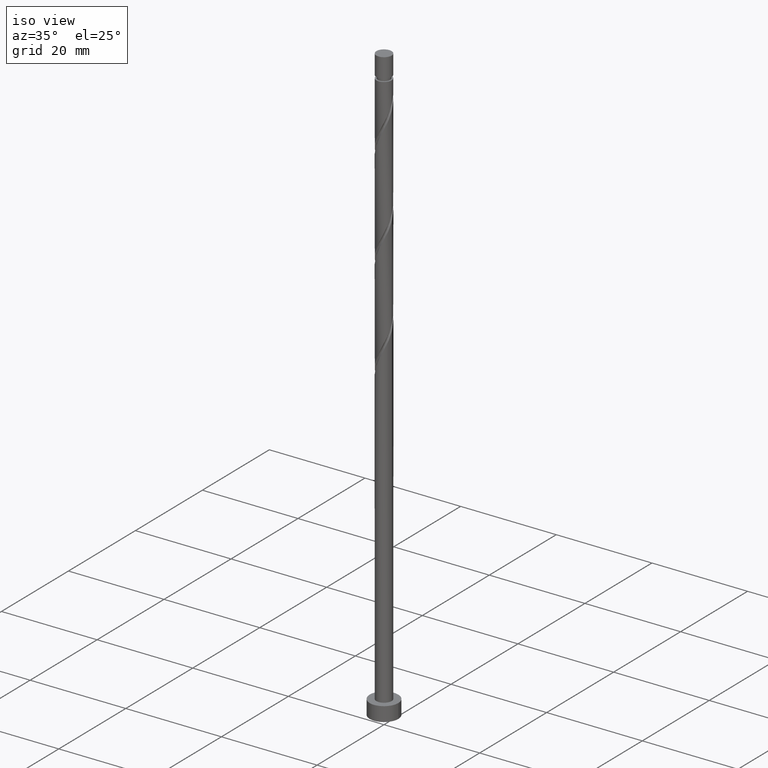
[diagram: clean part render]
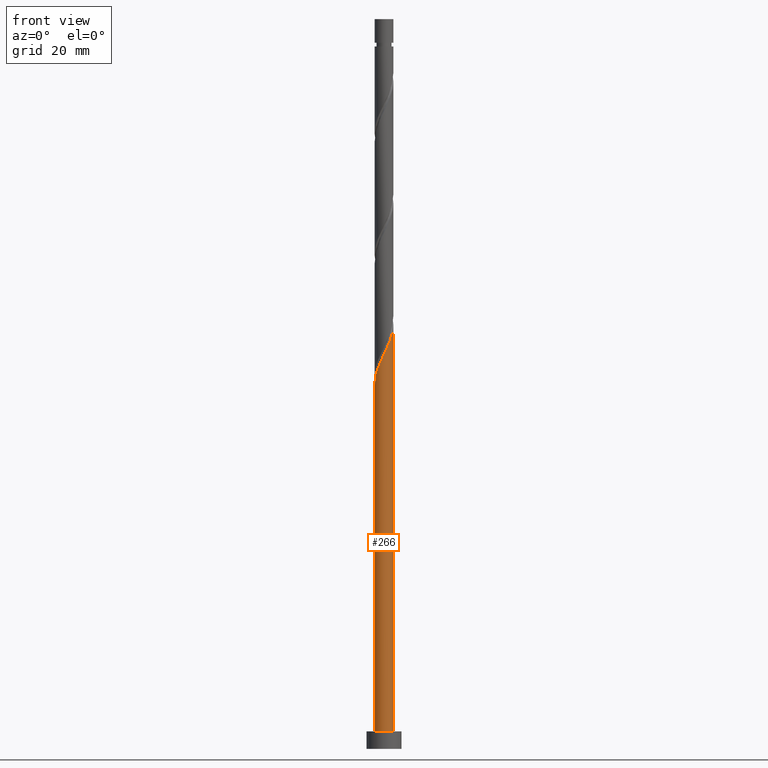
[diagram: tour spotlight — one face highlighted and labeled with its STEP entity id]
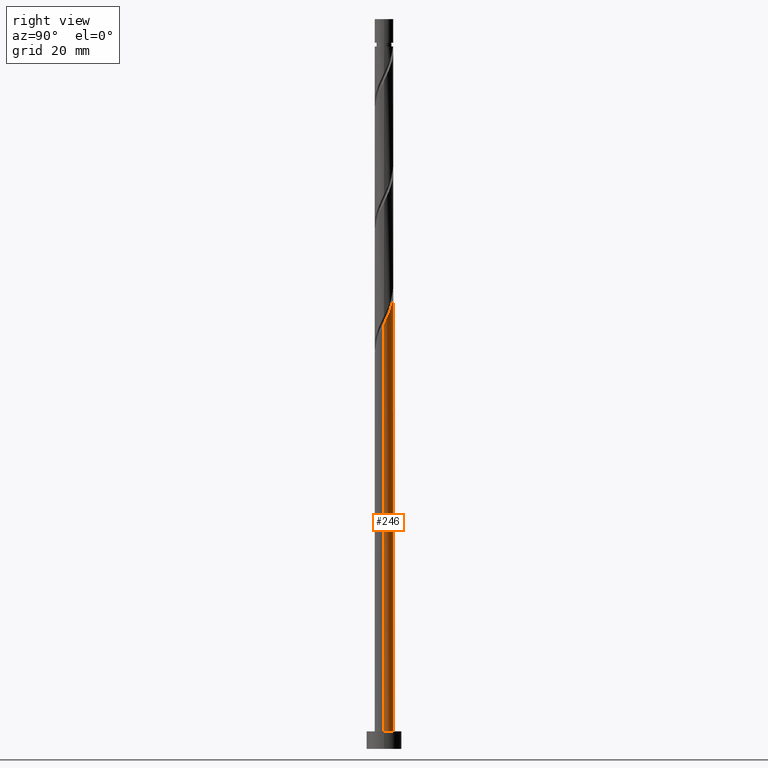
[diagram: tour spotlight — one face highlighted and labeled with its STEP entity id]
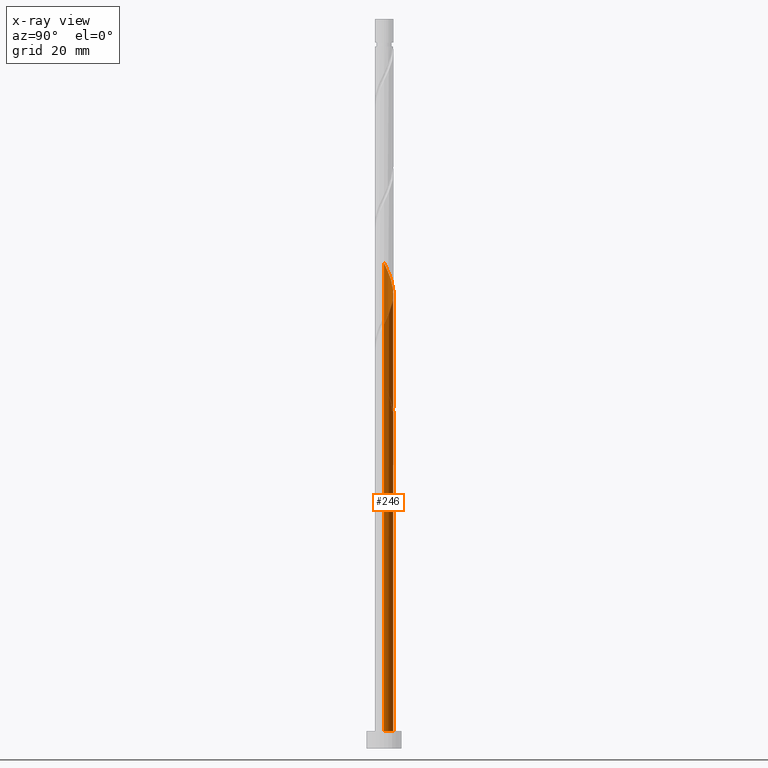
[diagram: x-ray of the same camera — body ghosted, this tour face saturated]
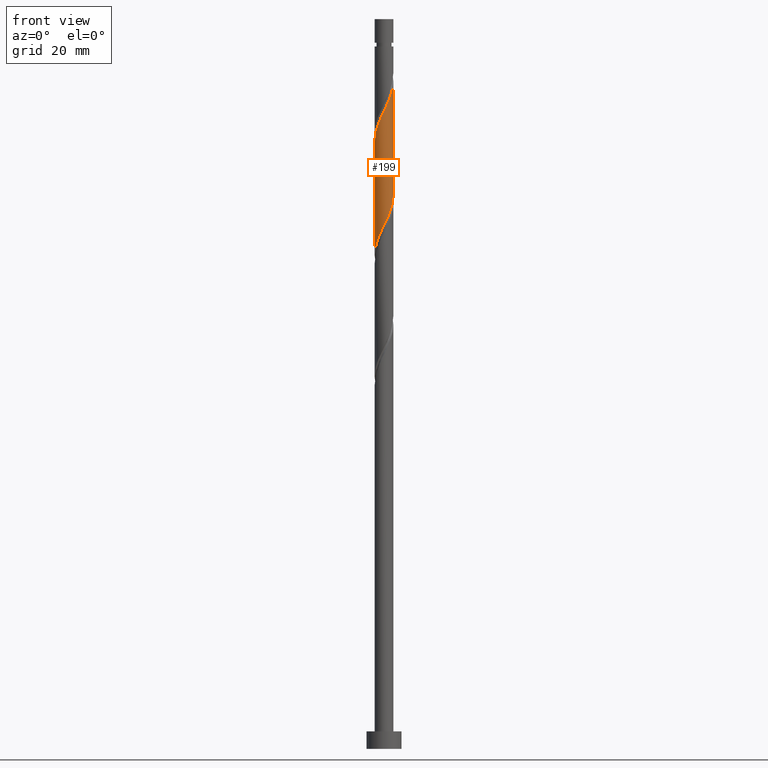
[diagram: tour spotlight — one face highlighted and labeled with its STEP entity id]
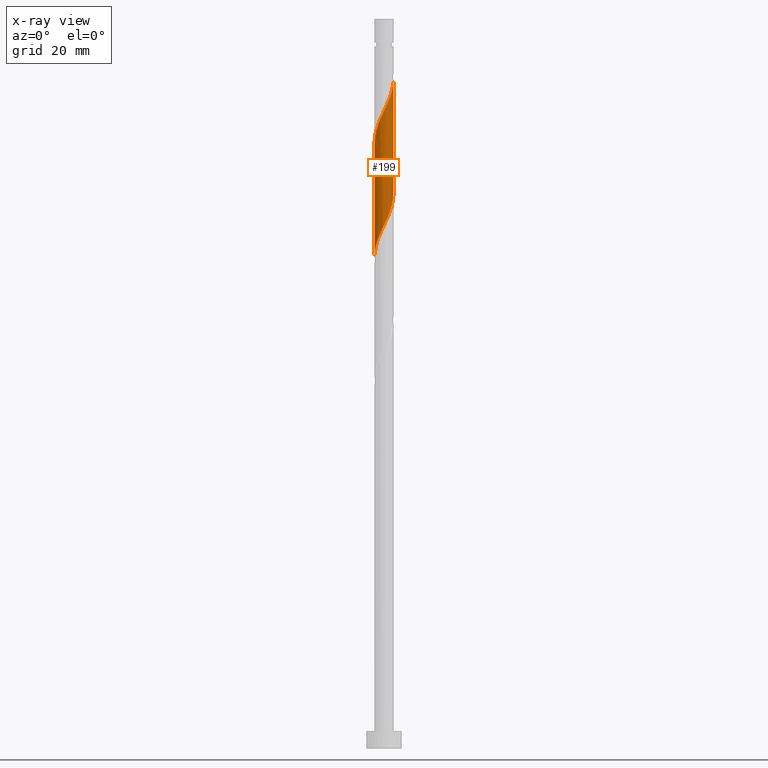
[diagram: x-ray of the same camera — body ghosted, this tour face saturated]
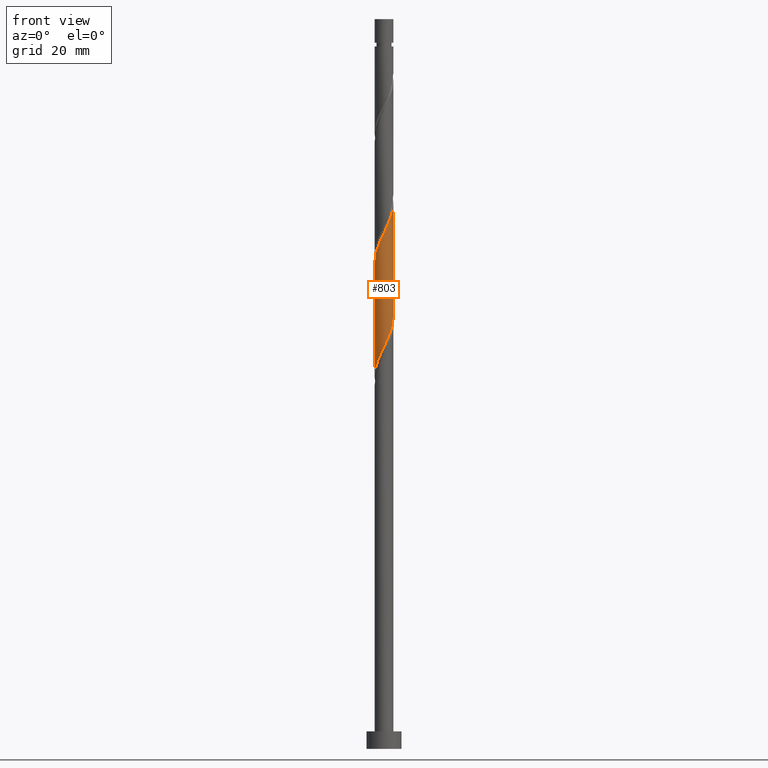
[diagram: tour spotlight — one face highlighted and labeled with its STEP entity id]
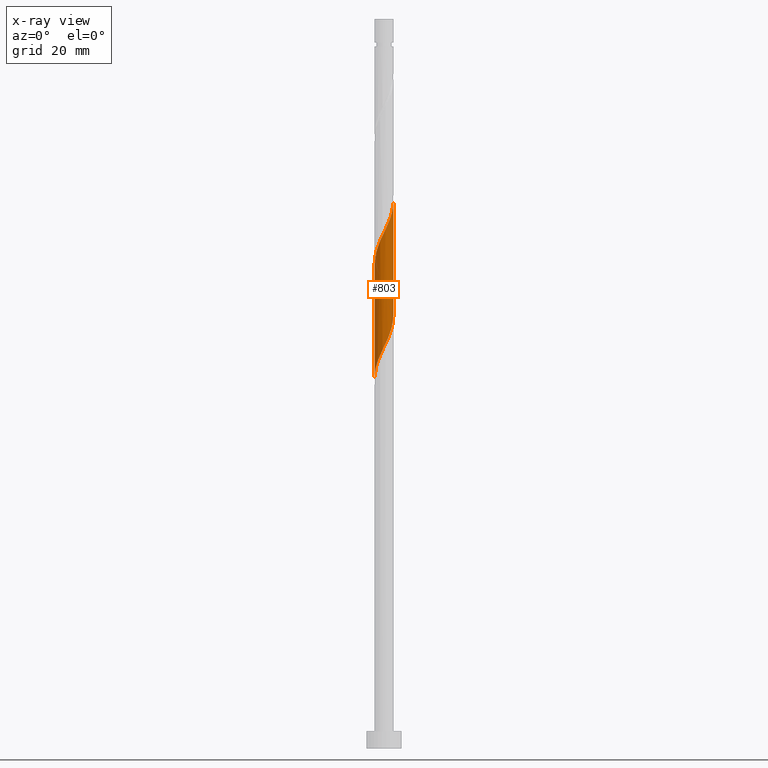
[diagram: x-ray of the same camera — body ghosted, this tour face saturated]
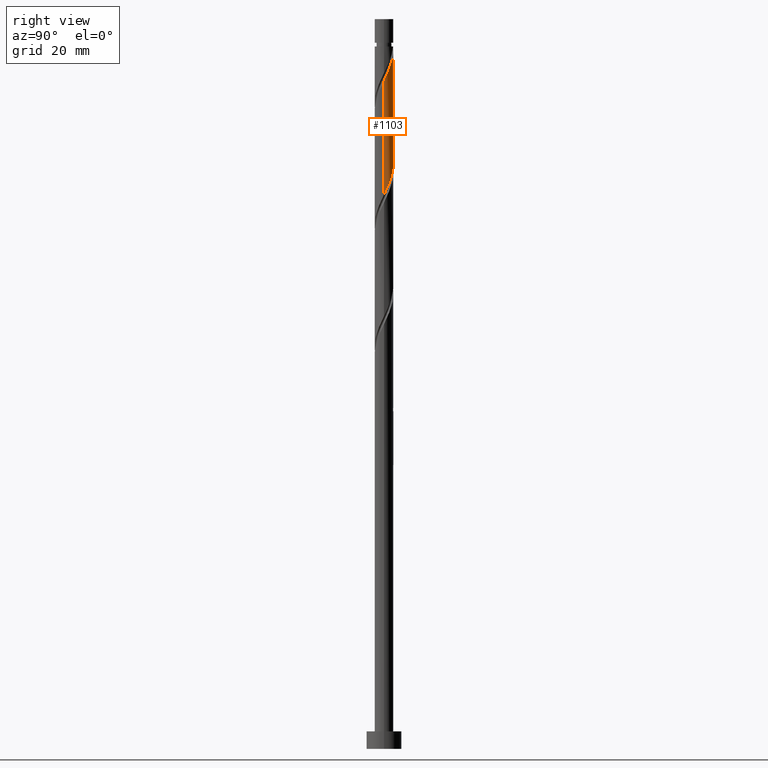
[diagram: tour spotlight — one face highlighted and labeled with its STEP entity id]
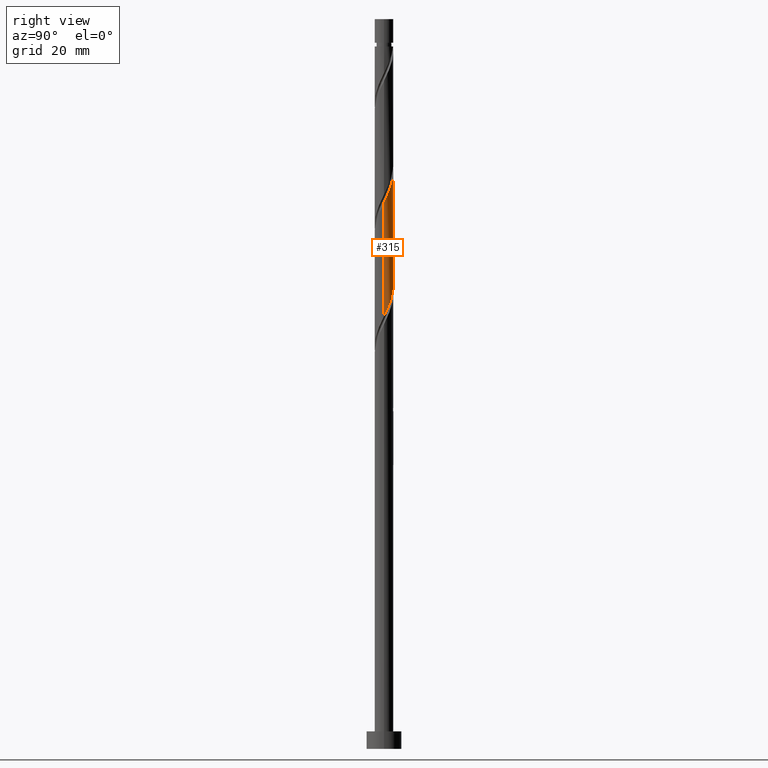
[diagram: tour spotlight — one face highlighted and labeled with its STEP entity id]
A machine part: a face-by-face anatomy tour. The part has 21 B-rep faces; the first image is the clean iso view, then the 6 largest visible faces are spotlighted one at a time (largest first), each with its STEP entity span.

Face 1 — front view, entity #266. In plain terms, the highlighted cylindrical surface (edge-blend (fillet) strip) has radius 1.6 mm, axis along (-0, -0, -1).
Definition (entity closure, byte-faithful):
#27 = EDGE_CURVE ( 'NONE', #1196, #986, #748, .T. ) ;
#33 = CARTESIAN_POINT ( 'NONE',  ( -1.600000000000000089, 0.000000000000000000, 125.0000000000000000 ) ) ;
#48 = AXIS2_PLACEMENT_3D ( 'NONE', #207, #907, #325 ) ;
#94 = CARTESIAN_POINT ( 'NONE',  ( 1.455687108539137631, -0.6640595169357738081, 71.36225393627489666 ) ) ;
#99 = CARTESIAN_POINT ( 'NONE',  ( -0.8946177049093876343, -1.350510413607083349, 65.63308726960821105 ) ) ;
#120 = DIRECTION ( 'NONE',  ( -0.000000000000000000, -0.000000000000000000, -1.000000000000000000 ) ) ;
#205 = CARTESIAN_POINT ( 'NONE',  ( -1.568000000000002725, -0.3183959798741187730, 63.02892060294156096 ) ) ;
#207 = CARTESIAN_POINT ( 'NONE',  ( 0.000000000000000000, 0.000000000000000000, 3.000000000000000000 ) ) ;
#213 = CARTESIAN_POINT ( 'NONE',  ( 1.560863803471192579, -0.4335013289621599264, 71.88308726960822526 ) ) ;
#214 = CARTESIAN_POINT ( 'NONE',  ( 1.600000000000000089, 1.959434878635764737E-16, 3.000000000000000000 ) ) ;
#218 = CARTESIAN_POINT ( 'NONE',  ( -0.6640595169357738081, -1.455687108539137631, 66.15392060294155385 ) ) ;
#228 = CARTESIAN_POINT ( 'NONE',  ( -1.600000000000002309, -0.1608060504414775549, 62.69842273687913092 ) ) ;
#250 = EDGE_CURVE ( 'NONE', #638, #1116, #298, .T. ) ;
#266 = ADVANCED_FACE ( 'NONE', ( #1313 ), #795, .T. ) ;
#298 = LINE ( 'NONE', #657, #1417 ) ;
#304 = DIRECTION ( 'NONE',  ( -0.000000000000000000, -0.000000000000000000, -1.000000000000000000 ) ) ;
#325 = DIRECTION ( 'NONE',  ( 1.000000000000000000, 0.000000000000000000, 0.000000000000000000 ) ) ;
#348 = CARTESIAN_POINT ( 'NONE',  ( -1.600000000000002975, -6.102192832764704392E-15, 62.36411816147129628 ) ) ;
#350 = DIRECTION ( 'NONE',  ( -1.000000000000000000, 0.000000000000000000, 0.000000000000000000 ) ) ;
#399 = VECTOR ( 'NONE', #120, 1000.000000000000000 ) ;
#436 = CARTESIAN_POINT ( 'NONE',  ( 0.3183959798741186620, -1.568000000000002725, 68.23725393627485403 ) ) ;
#451 = CARTESIAN_POINT ( 'NONE',  ( 1.589646386272569600, -0.1817260757584572284, 72.40392060294151122 ) ) ;
#569 = ORIENTED_EDGE ( 'NONE', *, *, #250, .F. ) ;
#584 = CARTESIAN_POINT ( 'NONE',  ( -0.1817260757584571729, -1.589646386272569600, 67.19558726960819683 ) ) ;
#621 = ORIENTED_EDGE ( 'NONE', *, *, #27, .T. ) ;
#638 = VERTEX_POINT ( 'NONE', #1194 ) ;
#657 = CARTESIAN_POINT ( 'NONE',  ( 1.600000000000000089, 1.959434878635764737E-16, 125.0000000000000000 ) ) ;
#668 = CIRCLE ( 'NONE', #48, 1.600000000000000089 ) ;
#677 = CARTESIAN_POINT ( 'NONE',  ( -1.081390185820701788, -1.179235034253425463, 65.11225393627488245 ) ) ;
#748 = LINE ( 'NONE', #33, #399 ) ;
#795 = CYLINDRICAL_SURFACE ( 'NONE', #924, 1.600000000000000089 ) ;
#813 = CARTESIAN_POINT ( 'NONE',  ( 0.07004917744524533085, -1.618428969073947732, 67.71642060294153964 ) ) ;
#907 = DIRECTION ( 'NONE',  ( 0.000000000000000000, 0.000000000000000000, 1.000000000000000000 ) ) ;
#910 = CARTESIAN_POINT ( 'NONE',  ( 1.350510413607083349, -0.8946177049093876343, 70.84142060294158227 ) ) ;
#920 = EDGE_CURVE ( 'NONE', #986, #1116, #668, .T. ) ;
#922 = CARTESIAN_POINT ( 'NONE',  ( -1.600000000000000089, 0.000000000000000000, 3.000000000000000000 ) ) ;
#924 = AXIS2_PLACEMENT_3D ( 'NONE', #1296, #951, #350 ) ;
#931 = ORIENTED_EDGE ( 'NONE', *, *, #920, .T. ) ;
#938 = CARTESIAN_POINT ( 'NONE',  ( 1.600000000000002975, 1.409351661621332025E-15, 72.78078482813795347 ) ) ;
#947 = CARTESIAN_POINT ( 'NONE',  ( 1.007959654899767132, -1.268162666732016053, 69.79975393627486824 ) ) ;
#951 = DIRECTION ( 'NONE',  ( -0.000000000000000000, -0.000000000000000000, -1.000000000000000000 ) ) ;
#986 = VERTEX_POINT ( 'NONE', #922 ) ;
#1051 = CARTESIAN_POINT ( 'NONE',  ( -0.4335013289621598154, -1.560863803471192579, 66.67475393627489666 ) ) ;
#1067 = CARTESIAN_POINT ( 'NONE',  ( -1.600000000000003197, -6.102192832764704392E-15, 62.36411816147129628 ) ) ;
#1116 = VERTEX_POINT ( 'NONE', #214 ) ;
#1184 = CARTESIAN_POINT ( 'NONE',  ( -1.268162666732016053, -1.007959654899767132, 64.59142060294155385 ) ) ;
#1194 = CARTESIAN_POINT ( 'NONE',  ( 1.600000000000002975, 1.409351661621332025E-15, 72.78078482813795347 ) ) ;
#1196 = VERTEX_POINT ( 'NONE', #348 ) ;
#1296 = CARTESIAN_POINT ( 'NONE',  ( 0.000000000000000000, 0.000000000000000000, 125.0000000000000000 ) ) ;
#1298 = CARTESIAN_POINT ( 'NONE',  ( 0.7873512186013792435, -1.392866848829036774, 69.27892060294152543 ) ) ;
#1306 = CARTESIAN_POINT ( 'NONE',  ( 0.5667427823029922429, -1.517571030926058162, 68.75808726960822526 ) ) ;
#1313 = FACE_OUTER_BOUND ( 'NONE', #1350, .T. ) ;
#1323 = ORIENTED_EDGE ( 'NONE', *, *, #1493, .F. ) ;
#1350 = EDGE_LOOP ( 'NONE', ( #569, #1323, #621, #931 ) ) ;
#1367 =( BOUNDED_CURVE ( )  B_SPLINE_CURVE ( 2, ( #1067, #228, #205, #1554, #1433, #1184, #677, #99, #218, #1051, #584, #813, #436, #1306, #1298, #947, #1537, #910, #94, #213, #451, #1439, #938 ),
 .UNSPECIFIED., .F., .T. ) 
 B_SPLINE_CURVE_WITH_KNOTS ( ( 3, 2, 2, 2, 2, 2, 2, 2, 2, 2, 2, 3 ),
 ( 0.05453220231385538103, 0.06250000000000000000, 0.07499999999999995559, 0.08750000000000002220, 0.09999999999999997780, 0.1125000000000000444, 0.1250000000000000000, 0.1374999999999999556, 0.1500000000000000222, 0.1624999999999999778, 0.1750000000000000444, 0.1795322023138548329 ),
 .UNSPECIFIED. ) 
 CURVE ( )  GEOMETRIC_REPRESENTATION_ITEM ( )  RATIONAL_B_SPLINE_CURVE ( ( 0.9039174447099438403, 0.9019565955404733604, 0.9090909090909216062, 0.8978984914501375592, 0.9090909090909216062, 0.8978984914501375592, 0.9090909090909216062, 0.8978984914501375592, 0.9090909090909216062, 0.8978984914501375592, 0.9090909090909216062, 0.8978984914501375592, 0.9090909090909216062, 0.8978984914501375592, 0.9090909090909216062, 0.8978984914501375592, 0.9090909090909216062, 0.8978984914501375592, 0.9090909090909216062, 0.8978984914501375592, 0.9090909090909216062, 0.9050328050005862490, 0.9039174447099439513 ) ) 
 REPRESENTATION_ITEM ( '' )  );
#1417 = VECTOR ( 'NONE', #304, 1000.000000000000000 ) ;
#1433 = CARTESIAN_POINT ( 'NONE',  ( -1.392866848829036774, -0.7873512186013795766, 64.07058726960822526 ) ) ;
#1439 = CARTESIAN_POINT ( 'NONE',  ( 1.600000000000001865, -0.09115797991430056590, 72.59127373893063861 ) ) ;
#1493 = EDGE_CURVE ( 'NONE', #1196, #638, #1367, .T. ) ;
#1537 = CARTESIAN_POINT ( 'NONE',  ( 1.179235034253425463, -1.081390185820701788, 70.32058726960821105 ) ) ;
#1554 = CARTESIAN_POINT ( 'NONE',  ( -1.517571030926058162, -0.5667427823029922429, 63.54975393627488955 ) ) ;

Face 2 — right view, entity #246. An x-ray twin of the same camera follows (body ghosted, this face saturated) — the face is partly hidden behind the body. In plain terms, the highlighted cylindrical surface (edge-blend (fillet) strip) has radius 1.6 mm, axis along (-0, -0, -1).
Definition (entity closure, byte-faithful):
#1 =( BOUNDED_CURVE ( )  B_SPLINE_CURVE ( 2, ( #326, #333, #63, #425, #83, #216, #203, #1413, #311, #572, #434 ),
 .UNSPECIFIED., .F., .T. ) 
 B_SPLINE_CURVE_WITH_KNOTS ( ( 3, 2, 2, 2, 2, 3 ),
 ( 0.000000000000000000, 0.01249999999999995386, 0.02500000000000002220, 0.03749999999999997780, 0.05000000000000004441, 0.05453220231385538103 ),
 .UNSPECIFIED. ) 
 CURVE ( )  GEOMETRIC_REPRESENTATION_ITEM ( )  RATIONAL_B_SPLINE_CURVE ( ( 0.9090909090909216062, 0.8978984914501375592, 0.9090909090909216062, 0.8978984914501375592, 0.9090909090909216062, 0.8978984914501375592, 0.9090909090909216062, 0.8978984914501375592, 0.9090909090909216062, 0.9050328050005859160, 0.9039174447099438403 ) ) 
 REPRESENTATION_ITEM ( '' )  );
#27 = EDGE_CURVE ( 'NONE', #1196, #986, #748, .T. ) ;
#33 = CARTESIAN_POINT ( 'NONE',  ( -1.600000000000000089, 0.000000000000000000, 125.0000000000000000 ) ) ;
#42 = CARTESIAN_POINT ( 'NONE',  ( -0.8946177049093855249, 1.350510413607081128, 60.42475393627486824 ) ) ;
#51 = CYLINDRICAL_SURFACE ( 'NONE', #1289, 1.600000000000000089 ) ;
#63 = CARTESIAN_POINT ( 'NONE',  ( -0.7873512186013795766, 1.392866848829036330, 58.86225393627486113 ) ) ;
#64 = CARTESIAN_POINT ( 'NONE',  ( -1.517571030926054831, 0.5667427823029912437, 62.50808726960820394 ) ) ;
#83 = CARTESIAN_POINT ( 'NONE',  ( -1.179235034253425463, 1.081390185820701788, 59.90392060294153964 ) ) ;
#104 = CARTESIAN_POINT ( 'NONE',  ( 0.6640595169357739191, 1.455687108539137631, 76.57058726960821105 ) ) ;
#111 = CARTESIAN_POINT ( 'NONE',  ( -1.007959654899767132, 1.268162666732016053, 80.21642060294158227 ) ) ;
#116 = CARTESIAN_POINT ( 'NONE',  ( 1.568000000000002725, 0.3183959798741186620, 73.44558726960818262 ) ) ;
#120 = DIRECTION ( 'NONE',  ( -0.000000000000000000, -0.000000000000000000, -1.000000000000000000 ) ) ;
#147 = EDGE_CURVE ( 'NONE', #1136, #148, #603, .T. ) ;
#148 = VERTEX_POINT ( 'NONE', #900 ) ;
#177 = CARTESIAN_POINT ( 'NONE',  ( -1.599999999999999201, 0.1608060504414772773, 63.35941846900394836 ) ) ;
#189 = ORIENTED_EDGE ( 'NONE', *, *, #250, .T. ) ;
#203 = CARTESIAN_POINT ( 'NONE',  ( -1.455687108539137631, 0.6640595169357734751, 60.94558726960821815 ) ) ;
#214 = CARTESIAN_POINT ( 'NONE',  ( 1.600000000000000089, 1.959434878635764737E-16, 3.000000000000000000 ) ) ;
#216 = CARTESIAN_POINT ( 'NONE',  ( -1.350510413607083793, 0.8946177049093876343, 60.42475393627489666 ) ) ;
#230 = CARTESIAN_POINT ( 'NONE',  ( 1.600000000000004530, 0.1608060504414664804, 73.11508940354578101 ) ) ;
#246 = ADVANCED_FACE ( 'NONE', ( #641 ), #51, .T. ) ;
#250 = EDGE_CURVE ( 'NONE', #638, #1116, #298, .T. ) ;
#252 = CIRCLE ( 'NONE', #1127, 1.600000000000000089 ) ;
#263 = ORIENTED_EDGE ( 'NONE', *, *, #27, .F. ) ;
#298 = LINE ( 'NONE', #657, #1417 ) ;
#304 = DIRECTION ( 'NONE',  ( -0.000000000000000000, -0.000000000000000000, -1.000000000000000000 ) ) ;
#311 = CARTESIAN_POINT ( 'NONE',  ( -1.589646386272569600, 0.1817260757584570341, 61.98725393627486824 ) ) ;
#312 = CARTESIAN_POINT ( 'NONE',  ( -1.599999999999999867, 2.054055081299190596E-15, 63.69372304441179011 ) ) ;
#326 = CARTESIAN_POINT ( 'NONE',  ( -0.3183959798741185510, 1.568000000000002725, 57.82058726960819683 ) ) ;
#333 = CARTESIAN_POINT ( 'NONE',  ( -0.5667427823029924649, 1.517571030926058162, 58.34142060294153964 ) ) ;
#338 = CARTESIAN_POINT ( 'NONE',  ( 0.1817260757584573949, 1.589646386272569600, 77.61225393627486824 ) ) ;
#348 = CARTESIAN_POINT ( 'NONE',  ( -1.600000000000002975, -6.102192832764704392E-15, 62.36411816147129628 ) ) ;
#356 = CARTESIAN_POINT ( 'NONE',  ( 1.081390185820701788, 1.179235034253424796, 75.52892060294153964 ) ) ;
#382 = EDGE_CURVE ( 'NONE', #555, #1196, #1, .T. ) ;
#388 = DIRECTION ( 'NONE',  ( 0.000000000000000000, 0.000000000000000000, 1.000000000000000000 ) ) ;
#399 = VECTOR ( 'NONE', #120, 1000.000000000000000 ) ;
#402 = CARTESIAN_POINT ( 'NONE',  ( -1.567999999999999838, 0.3183959798741186065, 63.02892060294153254 ) ) ;
#425 = CARTESIAN_POINT ( 'NONE',  ( -1.007959654899767132, 1.268162666732016053, 59.38308726960821815 ) ) ;
#434 = CARTESIAN_POINT ( 'NONE',  ( -1.600000000000003197, -6.102192832764704392E-15, 62.36411816147129628 ) ) ;
#471 = CARTESIAN_POINT ( 'NONE',  ( -1.599999999999999867, 2.054055081299190596E-15, 63.69372304441179011 ) ) ;
#481 = CIRCLE ( 'NONE', #1129, 1.600000000000000089 ) ;
#490 = CARTESIAN_POINT ( 'NONE',  ( 1.268162666732016053, 1.007959654899767132, 75.00808726960821105 ) ) ;
#511 = CARTESIAN_POINT ( 'NONE',  ( 0.000000000000000000, 0.000000000000000000, 57.82058726960821815 ) ) ;
#527 = CARTESIAN_POINT ( 'NONE',  ( 0.07004917744524569168, 1.618428969073944179, 58.34142060294152543 ) ) ;
#546 = ORIENTED_EDGE ( 'NONE', *, *, #382, .F. ) ;
#555 = VERTEX_POINT ( 'NONE', #1551 ) ;
#562 = ORIENTED_EDGE ( 'NONE', *, *, #1445, .T. ) ;
#572 = CARTESIAN_POINT ( 'NONE',  ( -1.600000000000003642, 0.09115797991428936653, 62.17460707226400984 ) ) ;
#602 = CARTESIAN_POINT ( 'NONE',  ( -1.600000000000002975, -1.604261997803005808E-15, 83.19745149480461066 ) ) ;
#603 =( BOUNDED_CURVE ( )  B_SPLINE_CURVE ( 2, ( #312, #177, #402, #64, #1245, #1489, #635, #42, #1282, #875, #1016, #527, #1273 ),
 .UNSPECIFIED., .F., .T. ) 
 B_SPLINE_CURVE_WITH_KNOTS ( ( 3, 2, 2, 2, 2, 2, 3 ),
 ( 0.9295322023138553602, 0.9375000000000000000, 0.9499999999999999556, 0.9625000000000000222, 0.9749999999999999778, 0.9875000000000000444, 1.000000000000000000 ),
 .UNSPECIFIED. ) 
 CURVE ( )  GEOMETRIC_REPRESENTATION_ITEM ( )  RATIONAL_B_SPLINE_CURVE ( ( 0.9039174447099369569, 0.9019565955404664770, 0.9090909090909147228, 0.8978984914501307868, 0.9090909090909147228, 0.8978984914501307868, 0.9090909090909147228, 0.8978984914501307868, 0.9090909090909147228, 0.8978984914501307868, 0.9090909090909147228, 0.8978984914501307868, 0.9090909090909147228 ) ) 
 REPRESENTATION_ITEM ( '' )  );
#635 = CARTESIAN_POINT ( 'NONE',  ( -1.081390185820699568, 1.179235034253423020, 60.94558726960821105 ) ) ;
#638 = VERTEX_POINT ( 'NONE', #1194 ) ;
#641 = FACE_OUTER_BOUND ( 'NONE', #678, .T. ) ;
#649 = CARTESIAN_POINT ( 'NONE',  ( 0.000000000000000000, 0.000000000000000000, 125.0000000000000000 ) ) ;
#657 = CARTESIAN_POINT ( 'NONE',  ( 1.600000000000000089, 1.959434878635764737E-16, 125.0000000000000000 ) ) ;
#678 = EDGE_LOOP ( 'NONE', ( #1286, #189, #1456, #263, #546, #562, #1199, #1517 ) ) ;
#700 = CARTESIAN_POINT ( 'NONE',  ( 1.600000000000002975, 1.409351661621332025E-15, 72.78078482813795347 ) ) ;
#711 = CARTESIAN_POINT ( 'NONE',  ( 1.517571030926058162, 0.5667427823029919098, 73.96642060294158227 ) ) ;
#740 = CARTESIAN_POINT ( 'NONE',  ( -1.179235034253425463, 1.081390185820701788, 80.73725393627486824 ) ) ;
#748 = LINE ( 'NONE', #33, #399 ) ;
#830 = CARTESIAN_POINT ( 'NONE',  ( -1.600000000000003197, 0.09115797991428976899, 83.00794040559735265 ) ) ;
#875 = CARTESIAN_POINT ( 'NONE',  ( -0.4335013289621584276, 1.560863803471189470, 59.38308726960818262 ) ) ;
#897 = LINE ( 'NONE', #1168, #1181 ) ;
#900 = CARTESIAN_POINT ( 'NONE',  ( 0.3183959798741189950, 1.567999999999999838, 57.82058726960820394 ) ) ;
#922 = CARTESIAN_POINT ( 'NONE',  ( -1.600000000000000089, 0.000000000000000000, 3.000000000000000000 ) ) ;
#932 = EDGE_CURVE ( 'NONE', #1495, #1136, #897, .T. ) ;
#948 = CARTESIAN_POINT ( 'NONE',  ( -0.7873512186013795766, 1.392866848829036330, 79.69558726960821105 ) ) ;
#963 = DIRECTION ( 'NONE',  ( 1.000000000000000000, 0.000000000000000000, 0.000000000000000000 ) ) ;
#986 = VERTEX_POINT ( 'NONE', #922 ) ;
#996 = DIRECTION ( 'NONE',  ( 0.000000000000000000, 1.000000000000000000, -1.301042606982605321E-14 ) ) ;
#1016 = CARTESIAN_POINT ( 'NONE',  ( -0.1817260757584563402, 1.589646386272566714, 58.86225393627486824 ) ) ;
#1023 = DIRECTION ( 'NONE',  ( -0.000000000000000000, -0.000000000000000000, -1.000000000000000000 ) ) ;
#1069 = CARTESIAN_POINT ( 'NONE',  ( -0.3183959798741186065, 1.568000000000002725, 78.65392060294155385 ) ) ;
#1084 = CARTESIAN_POINT ( 'NONE',  ( -0.07004917744524516432, 1.618428969073947732, 78.13308726960819683 ) ) ;
#1116 = VERTEX_POINT ( 'NONE', #214 ) ;
#1127 = AXIS2_PLACEMENT_3D ( 'NONE', #1177, #388, #963 ) ;
#1129 = AXIS2_PLACEMENT_3D ( 'NONE', #511, #1258, #996 ) ;
#1136 = VERTEX_POINT ( 'NONE', #471 ) ;
#1152 = EDGE_CURVE ( 'NONE', #638, #1495, #1208, .T. ) ;
#1154 = DIRECTION ( 'NONE',  ( -0.000000000000000000, -0.000000000000000000, -1.000000000000000000 ) ) ;
#1168 = CARTESIAN_POINT ( 'NONE',  ( -1.600000000000000089, 0.000000000000000000, 125.0000000000000000 ) ) ;
#1177 = CARTESIAN_POINT ( 'NONE',  ( 0.000000000000000000, 0.000000000000000000, 3.000000000000000000 ) ) ;
#1181 = VECTOR ( 'NONE', #1154, 1000.000000000000000 ) ;
#1186 = CARTESIAN_POINT ( 'NONE',  ( 0.8946177049093879674, 1.350510413607083349, 76.04975393627485403 ) ) ;
#1192 = CARTESIAN_POINT ( 'NONE',  ( 0.4335013289621600929, 1.560863803471192579, 77.09142060294159648 ) ) ;
#1194 = CARTESIAN_POINT ( 'NONE',  ( 1.600000000000002975, 1.409351661621332025E-15, 72.78078482813795347 ) ) ;
#1196 = VERTEX_POINT ( 'NONE', #348 ) ;
#1199 = ORIENTED_EDGE ( 'NONE', *, *, #147, .F. ) ;
#1201 = EDGE_CURVE ( 'NONE', #1116, #986, #252, .T. ) ;
#1208 =( BOUNDED_CURVE ( )  B_SPLINE_CURVE ( 2, ( #700, #230, #116, #711, #1316, #490, #356, #1186, #104, #1192, #338, #1084, #1069, #1555, #948, #111, #740, #1331, #1570, #1442, #1227, #830, #602 ),
 .UNSPECIFIED., .F., .T. ) 
 B_SPLINE_CURVE_WITH_KNOTS ( ( 3, 2, 2, 2, 2, 2, 2, 2, 2, 2, 2, 3 ),
 ( 0.1795322023138548329, 0.1875000000000000000, 0.1999999999999999556, 0.2125000000000000222, 0.2249999999999999778, 0.2375000000000000444, 0.2500000000000000000, 0.2624999999999999556, 0.2750000000000000222, 0.2874999999999999778, 0.3000000000000000444, 0.3045322023138553602 ),
 .UNSPECIFIED. ) 
 CURVE ( )  GEOMETRIC_REPRESENTATION_ITEM ( )  RATIONAL_B_SPLINE_CURVE ( ( 0.9039174447099439513, 0.9019565955404726942, 0.9090909090909216062, 0.8978984914501375592, 0.9090909090909216062, 0.8978984914501375592, 0.9090909090909216062, 0.8978984914501375592, 0.9090909090909216062, 0.8978984914501375592, 0.9090909090909216062, 0.8978984914501375592, 0.9090909090909216062, 0.8978984914501375592, 0.9090909090909216062, 0.8978984914501375592, 0.9090909090909216062, 0.8978984914501375592, 0.9090909090909216062, 0.8978984914501375592, 0.9090909090909216062, 0.9050328050005858049, 0.9039174447099436183 ) ) 
 REPRESENTATION_ITEM ( '' )  );
#1227 = CARTESIAN_POINT ( 'NONE',  ( -1.589646386272569600, 0.1817260757584570341, 82.82058726960821105 ) ) ;
#1245 = CARTESIAN_POINT ( 'NONE',  ( -1.392866848829034110, 0.7873512186013784664, 61.98725393627485403 ) ) ;
#1258 = DIRECTION ( 'NONE',  ( -4.814824860968090333E-30, -1.084202172485505381E-14, -1.000000000000000000 ) ) ;
#1273 = CARTESIAN_POINT ( 'NONE',  ( 0.3183959798741189950, 1.567999999999999838, 57.82058726960820394 ) ) ;
#1282 = CARTESIAN_POINT ( 'NONE',  ( -0.6640595169357720318, 1.455687108539135632, 59.90392060294153254 ) ) ;
#1286 = ORIENTED_EDGE ( 'NONE', *, *, #1152, .F. ) ;
#1289 = AXIS2_PLACEMENT_3D ( 'NONE', #649, #1023, #1509 ) ;
#1315 = CARTESIAN_POINT ( 'NONE',  ( -1.600000000000002975, -1.604261997803005611E-15, 83.19745149480462487 ) ) ;
#1316 = CARTESIAN_POINT ( 'NONE',  ( 1.392866848829036774, 0.7873512186013792435, 74.48725393627488245 ) ) ;
#1331 = CARTESIAN_POINT ( 'NONE',  ( -1.350510413607083793, 0.8946177049093876343, 81.25808726960822526 ) ) ;
#1413 = CARTESIAN_POINT ( 'NONE',  ( -1.560863803471192579, 0.4335013289621597599, 61.46642060294154675 ) ) ;
#1417 = VECTOR ( 'NONE', #304, 1000.000000000000000 ) ;
#1442 = CARTESIAN_POINT ( 'NONE',  ( -1.560863803471192579, 0.4335013289621597599, 82.29975393627488245 ) ) ;
#1445 = EDGE_CURVE ( 'NONE', #555, #148, #481, .T. ) ;
#1456 = ORIENTED_EDGE ( 'NONE', *, *, #1201, .T. ) ;
#1489 = CARTESIAN_POINT ( 'NONE',  ( -1.268162666732012944, 1.007959654899765578, 61.46642060294152543 ) ) ;
#1495 = VERTEX_POINT ( 'NONE', #1315 ) ;
#1509 = DIRECTION ( 'NONE',  ( -1.000000000000000000, 0.000000000000000000, 0.000000000000000000 ) ) ;
#1517 = ORIENTED_EDGE ( 'NONE', *, *, #932, .F. ) ;
#1551 = CARTESIAN_POINT ( 'NONE',  ( -0.3183959798741184954, 1.568000000000002725, 57.82058726960820394 ) ) ;
#1555 = CARTESIAN_POINT ( 'NONE',  ( -0.5667427823029924649, 1.517571030926058162, 79.17475393627489666 ) ) ;
#1570 = CARTESIAN_POINT ( 'NONE',  ( -1.455687108539137631, 0.6640595169357734751, 81.77892060294152543 ) ) ;

Face 3 — front view, entity #199. An x-ray twin of the same camera follows (body ghosted, this face saturated) — the face is partly hidden behind the body. In plain terms, the highlighted cylindrical surface (edge-blend (fillet) strip) has radius 1.6 mm, axis along (-0, -0, -1).
Definition (entity closure, byte-faithful):
#34 = DIRECTION ( 'NONE',  ( -0.000000000000000000, -0.000000000000000000, -1.000000000000000000 ) ) ;
#47 = LINE ( 'NONE', #1142, #1494 ) ;
#67 = CARTESIAN_POINT ( 'NONE',  ( -1.600000000000004530, -0.1608060504414661196, 104.3650894035457952 ) ) ;
#74 = CARTESIAN_POINT ( 'NONE',  ( 1.567999999999999838, -0.3183959798741187730, 94.27892060294152543 ) ) ;
#91 = CARTESIAN_POINT ( 'NONE',  ( -1.599999999999999867, -0.09115797991429139269, 84.71656746695238382 ) ) ;
#185 = CARTESIAN_POINT ( 'NONE',  ( -1.350510413607081128, -0.8946177049093851918, 86.46642060294151122 ) ) ;
#195 = CARTESIAN_POINT ( 'NONE',  ( 0.7873512186013792435, -1.392866848829036774, 110.9455872696082395 ) ) ;
#199 = ADVANCED_FACE ( 'NONE', ( #1374 ), #1502, .T. ) ;
#222 = LINE ( 'NONE', #587, #1080 ) ;
#232 = CARTESIAN_POINT ( 'NONE',  ( 1.599999999999999867, 2.203986109131248444E-15, 94.94372304441181143 ) ) ;
#237 = DIRECTION ( 'NONE',  ( -0.000000000000000000, -0.000000000000000000, -1.000000000000000000 ) ) ;
#294 = VERTEX_POINT ( 'NONE', #232 ) ;
#303 = CARTESIAN_POINT ( 'NONE',  ( -1.007959654899765578, -1.268162666732012944, 87.50808726960821105 ) ) ;
#316 = CARTESIAN_POINT ( 'NONE',  ( -0.1817260757584571729, -1.589646386272569600, 108.8622539362748682 ) ) ;
#335 = CARTESIAN_POINT ( 'NONE',  ( 1.007959654899767132, -1.268162666732016053, 111.4664206029415539 ) ) ;
#344 = CARTESIAN_POINT ( 'NONE',  ( -1.600000000000002975, 1.439337867187743042E-15, 104.0307848281379393 ) ) ;
#386 = ORIENTED_EDGE ( 'NONE', *, *, #1287, .F. ) ;
#411 = CARTESIAN_POINT ( 'NONE',  ( 0.000000000000000000, 0.000000000000000000, 125.0000000000000000 ) ) ;
#444 = CARTESIAN_POINT ( 'NONE',  ( 1.589646386272569600, -0.1817260757584572284, 114.0705872696081826 ) ) ;
#529 = EDGE_CURVE ( 'NONE', #294, #1008, #760, .T. ) ;
#553 = CARTESIAN_POINT ( 'NONE',  ( -0.6640595169357738081, -1.455687108539137631, 107.8205872696082253 ) ) ;
#558 = CARTESIAN_POINT ( 'NONE',  ( 1.599999999999999867, 2.203986109131248444E-15, 94.94372304441181143 ) ) ;
#566 = CARTESIAN_POINT ( 'NONE',  ( -0.3183959798741187175, -1.567999999999999838, 89.07058726960819683 ) ) ;
#577 = CARTESIAN_POINT ( 'NONE',  ( -1.081390185820701788, -1.179235034253425463, 106.7789206029415396 ) ) ;
#587 = CARTESIAN_POINT ( 'NONE',  ( -1.600000000000000089, 0.000000000000000000, 125.0000000000000000 ) ) ;
#656 = CARTESIAN_POINT ( 'NONE',  ( -0.5667427823029914657, -1.517571030926054609, 88.54975393627483982 ) ) ;
#667 = CARTESIAN_POINT ( 'NONE',  ( 1.392866848829034110, -0.7873512186013789105, 93.23725393627483982 ) ) ;
#670 = CARTESIAN_POINT ( 'NONE',  ( 1.455687108539137631, -0.6640595169357738081, 113.0289206029415396 ) ) ;
#688 = CARTESIAN_POINT ( 'NONE',  ( 0.07004917744524533085, -1.618428969073947732, 109.3830872696082253 ) ) ;
#760 =( BOUNDED_CURVE ( )  B_SPLINE_CURVE ( 2, ( #558, #780, #74, #899, #667, #1146, #1398, #1038, #1405, #1172, #915, #806, #566, #656, #811, #303, #787, #185, #908, #1281, #1158, #91, #1056 ),
 .UNSPECIFIED., .F., .T. ) 
 B_SPLINE_CURVE_WITH_KNOTS ( ( 3, 2, 2, 2, 2, 2, 2, 2, 2, 2, 2, 3 ),
 ( 0.5545322023138551382, 0.5625000000000000000, 0.5749999999999999556, 0.5875000000000000222, 0.5999999999999999778, 0.6125000000000000444, 0.6250000000000000000, 0.6374999999999999556, 0.6500000000000000222, 0.6624999999999999778, 0.6750000000000000444, 0.6795322023138552492 ),
 .UNSPECIFIED. ) 
 CURVE ( )  GEOMETRIC_REPRESENTATION_ITEM ( )  RATIONAL_B_SPLINE_CURVE ( ( 0.9039174447099369569, 0.9019565955404662549, 0.9090909090909147228, 0.8978984914501307868, 0.9090909090909147228, 0.8978984914501307868, 0.9090909090909147228, 0.8978984914501307868, 0.9090909090909147228, 0.8978984914501307868, 0.9090909090909147228, 0.8978984914501307868, 0.9090909090909147228, 0.8978984914501307868, 0.9090909090909147228, 0.8978984914501307868, 0.9090909090909147228, 0.8978984914501307868, 0.9090909090909147228, 0.8978984914501307868, 0.9090909090909147228, 0.9050328050005791436, 0.9039174447099369569 ) ) 
 REPRESENTATION_ITEM ( '' )  );
#764 = ORIENTED_EDGE ( 'NONE', *, *, #1133, .T. ) ;
#780 = CARTESIAN_POINT ( 'NONE',  ( 1.599999999999999645, -0.1608060504414730307, 94.60941846900395547 ) ) ;
#787 = CARTESIAN_POINT ( 'NONE',  ( -1.179235034253423242, -1.081390185820699346, 86.98725393627488245 ) ) ;
#789 = CARTESIAN_POINT ( 'NONE',  ( 0.3183959798741186620, -1.568000000000002725, 109.9039206029415254 ) ) ;
#806 = CARTESIAN_POINT ( 'NONE',  ( -0.07004917744524592760, -1.618428969073944179, 89.59142060294153964 ) ) ;
#811 = CARTESIAN_POINT ( 'NONE',  ( -0.7873512186013785774, -1.392866848829034110, 88.02892060294153964 ) ) ;
#823 = CARTESIAN_POINT ( 'NONE',  ( -1.517571030926058162, -0.5667427823029922429, 105.2164206029415539 ) ) ;
#837 = ORIENTED_EDGE ( 'NONE', *, *, #1519, .F. ) ;
#882 = DIRECTION ( 'NONE',  ( -0.000000000000000000, -0.000000000000000000, -1.000000000000000000 ) ) ;
#899 = CARTESIAN_POINT ( 'NONE',  ( 1.517571030926054609, -0.5667427823029915768, 93.75808726960816841 ) ) ;
#908 = CARTESIAN_POINT ( 'NONE',  ( -1.455687108539135632, -0.6640595169357719207, 85.94558726960819683 ) ) ;
#915 = CARTESIAN_POINT ( 'NONE',  ( 0.1817260757584562569, -1.589646386272566936, 90.11225393627486824 ) ) ;
#919 = CARTESIAN_POINT ( 'NONE',  ( 1.179235034253425463, -1.081390185820701788, 111.9872539362748682 ) ) ;
#930 = CARTESIAN_POINT ( 'NONE',  ( 1.350510413607083349, -0.8946177049093876343, 112.5080872696082537 ) ) ;
#939 = CARTESIAN_POINT ( 'NONE',  ( 1.600000000000002753, 5.922275599366235132E-16, 114.4474514948046391 ) ) ;
#1008 = VERTEX_POINT ( 'NONE', #1026 ) ;
#1026 = CARTESIAN_POINT ( 'NONE',  ( -1.599999999999999867, 2.054055081299190596E-15, 84.52705637774511160 ) ) ;
#1034 = CARTESIAN_POINT ( 'NONE',  ( -0.4335013289621598154, -1.560863803471192579, 108.3414206029415539 ) ) ;
#1038 = CARTESIAN_POINT ( 'NONE',  ( 0.8946177049093851918, -1.350510413607081128, 91.67475393627488245 ) ) ;
#1056 = CARTESIAN_POINT ( 'NONE',  ( -1.599999999999999867, 2.054055081299190596E-15, 84.52705637774511160 ) ) ;
#1080 = VECTOR ( 'NONE', #237, 1000.000000000000000 ) ;
#1133 = EDGE_CURVE ( 'NONE', #1538, #1008, #222, .T. ) ;
#1142 = CARTESIAN_POINT ( 'NONE',  ( 1.600000000000000089, 1.959434878635764737E-16, 125.0000000000000000 ) ) ;
#1146 = CARTESIAN_POINT ( 'NONE',  ( 1.268162666732012944, -1.007959654899765578, 92.71642060294152543 ) ) ;
#1151 = EDGE_LOOP ( 'NONE', ( #386, #837, #764, #1416 ) ) ;
#1158 = CARTESIAN_POINT ( 'NONE',  ( -1.589646386272566936, -0.1817260757584563402, 84.90392060294152543 ) ) ;
#1160 = CARTESIAN_POINT ( 'NONE',  ( 1.600000000000002531, 5.922275599366235132E-16, 114.4474514948046249 ) ) ;
#1166 = CARTESIAN_POINT ( 'NONE',  ( 1.600000000000003197, -0.09115797991429222535, 114.2579404055973384 ) ) ;
#1172 = CARTESIAN_POINT ( 'NONE',  ( 0.4335013289621582055, -1.560863803471189470, 90.63308726960816841 ) ) ;
#1235 = VERTEX_POINT ( 'NONE', #939 ) ;
#1259 = AXIS2_PLACEMENT_3D ( 'NONE', #411, #882, #1382 ) ;
#1260 =( BOUNDED_CURVE ( )  B_SPLINE_CURVE ( 2, ( #344, #67, #1548, #823, #1522, #1322, #577, #1409, #553, #1034, #316, #688, #789, #1285, #195, #335, #919, #930, #670, #1422, #444, #1166, #1160 ),
 .UNSPECIFIED., .F., .T. ) 
 B_SPLINE_CURVE_WITH_KNOTS ( ( 3, 2, 2, 2, 2, 2, 2, 2, 2, 2, 2, 3 ),
 ( 0.5545322023138548051, 0.5625000000000000000, 0.5749999999999999556, 0.5875000000000000222, 0.5999999999999999778, 0.6125000000000000444, 0.6250000000000000000, 0.6374999999999999556, 0.6500000000000000222, 0.6624999999999999778, 0.6750000000000000444, 0.6795322023138552492 ),
 .UNSPECIFIED. ) 
 CURVE ( )  GEOMETRIC_REPRESENTATION_ITEM ( )  RATIONAL_B_SPLINE_CURVE ( ( 0.9039174447099439513, 0.9019565955404726942, 0.9090909090909216062, 0.8978984914501375592, 0.9090909090909216062, 0.8978984914501375592, 0.9090909090909216062, 0.8978984914501375592, 0.9090909090909216062, 0.8978984914501375592, 0.9090909090909216062, 0.8978984914501375592, 0.9090909090909216062, 0.8978984914501375592, 0.9090909090909216062, 0.8978984914501375592, 0.9090909090909216062, 0.8978984914501375592, 0.9090909090909216062, 0.8978984914501375592, 0.9090909090909216062, 0.9050328050005858049, 0.9039174447099437293 ) ) 
 REPRESENTATION_ITEM ( '' )  );
#1281 = CARTESIAN_POINT ( 'NONE',  ( -1.560863803471189470, -0.4335013289621584276, 85.42475393627486824 ) ) ;
#1285 = CARTESIAN_POINT ( 'NONE',  ( 0.5667427823029922429, -1.517571030926058162, 110.4247539362749109 ) ) ;
#1287 = EDGE_CURVE ( 'NONE', #1235, #294, #47, .T. ) ;
#1322 = CARTESIAN_POINT ( 'NONE',  ( -1.268162666732016053, -1.007959654899767132, 106.2580872696082395 ) ) ;
#1344 = CARTESIAN_POINT ( 'NONE',  ( -1.600000000000002975, 1.439337867187743042E-15, 104.0307848281379393 ) ) ;
#1374 = FACE_OUTER_BOUND ( 'NONE', #1151, .T. ) ;
#1382 = DIRECTION ( 'NONE',  ( -1.000000000000000000, 0.000000000000000000, 0.000000000000000000 ) ) ;
#1398 = CARTESIAN_POINT ( 'NONE',  ( 1.081390185820699346, -1.179235034253423242, 92.19558726960821105 ) ) ;
#1405 = CARTESIAN_POINT ( 'NONE',  ( 0.6640595169357719207, -1.455687108539135632, 91.15392060294149701 ) ) ;
#1409 = CARTESIAN_POINT ( 'NONE',  ( -0.8946177049093876343, -1.350510413607083349, 107.2997539362748967 ) ) ;
#1416 = ORIENTED_EDGE ( 'NONE', *, *, #529, .F. ) ;
#1422 = CARTESIAN_POINT ( 'NONE',  ( 1.560863803471192579, -0.4335013289621599264, 113.5497539362748824 ) ) ;
#1494 = VECTOR ( 'NONE', #34, 1000.000000000000000 ) ;
#1502 = CYLINDRICAL_SURFACE ( 'NONE', #1259, 1.600000000000000089 ) ;
#1519 = EDGE_CURVE ( 'NONE', #1538, #1235, #1260, .T. ) ;
#1522 = CARTESIAN_POINT ( 'NONE',  ( -1.392866848829036774, -0.7873512186013795766, 105.7372539362748540 ) ) ;
#1538 = VERTEX_POINT ( 'NONE', #1344 ) ;
#1548 = CARTESIAN_POINT ( 'NONE',  ( -1.568000000000002725, -0.3183959798741187730, 104.6955872696081968 ) ) ;

Face 4 — front view, entity #803. An x-ray twin of the same camera follows (body ghosted, this face saturated) — the face is partly hidden behind the body. In plain terms, the highlighted cylindrical surface (edge-blend (fillet) strip) has radius 1.6 mm, axis along (-0, -0, -1).
Definition (entity closure, byte-faithful):
#24 = CARTESIAN_POINT ( 'NONE',  ( 1.599999999999999867, 2.203986109131248444E-15, 74.11038971107845441 ) ) ;
#76 = CARTESIAN_POINT ( 'NONE',  ( -1.600000000000002975, -1.604261997803005808E-15, 83.19745149480461066 ) ) ;
#77 = ORIENTED_EDGE ( 'NONE', *, *, #932, .T. ) ;
#87 = CARTESIAN_POINT ( 'NONE',  ( -1.517571030926058162, -0.5667427823029922429, 84.38308726960825368 ) ) ;
#96 = CARTESIAN_POINT ( 'NONE',  ( -1.589646386272566936, -0.1817260757584563402, 64.07058726960821105 ) ) ;
#121 = CARTESIAN_POINT ( 'NONE',  ( 1.600000000000003197, -0.09115797991428777058, 93.42460707226399563 ) ) ;
#124 =( BOUNDED_CURVE ( )  B_SPLINE_CURVE ( 2, ( #76, #560, #1176, #87, #1043, #328, #1528, #1060, #461, #808, #1415, #323, #568, #353, #828, #1447, #841, #716, #387, #1328, #614, #121, #732 ),
 .UNSPECIFIED., .F., .T. ) 
 B_SPLINE_CURVE_WITH_KNOTS ( ( 3, 2, 2, 2, 2, 2, 2, 2, 2, 2, 2, 3 ),
 ( 0.3045322023138553602, 0.3125000000000000000, 0.3249999999999999556, 0.3375000000000000222, 0.3499999999999999778, 0.3625000000000000444, 0.3750000000000000000, 0.3874999999999999556, 0.4000000000000000222, 0.4124999999999999778, 0.4250000000000000444, 0.4295322023138554712 ),
 .UNSPECIFIED. ) 
 CURVE ( )  GEOMETRIC_REPRESENTATION_ITEM ( )  RATIONAL_B_SPLINE_CURVE ( ( 0.9039174447099436183, 0.9019565955404732494, 0.9090909090909216062, 0.8978984914501375592, 0.9090909090909216062, 0.8978984914501375592, 0.9090909090909216062, 0.8978984914501375592, 0.9090909090909216062, 0.8978984914501375592, 0.9090909090909216062, 0.8978984914501375592, 0.9090909090909216062, 0.8978984914501375592, 0.9090909090909216062, 0.8978984914501375592, 0.9090909090909216062, 0.8978984914501375592, 0.9090909090909216062, 0.8978984914501375592, 0.9090909090909216062, 0.9050328050005856939, 0.9039174447099436183 ) ) 
 REPRESENTATION_ITEM ( '' )  );
#125 = CARTESIAN_POINT ( 'NONE',  ( 1.599999999999999867, 2.203986109131248444E-15, 74.11038971107845441 ) ) ;
#146 = CARTESIAN_POINT ( 'NONE',  ( 1.392866848829034110, -0.7873512186013789105, 72.40392060294153964 ) ) ;
#258 = CYLINDRICAL_SURFACE ( 'NONE', #1102, 1.600000000000000089 ) ;
#321 = LINE ( 'NONE', #1526, #824 ) ;
#323 = CARTESIAN_POINT ( 'NONE',  ( 0.07004917744524533085, -1.618428969073947732, 88.54975393627488245 ) ) ;
#328 = CARTESIAN_POINT ( 'NONE',  ( -1.268162666732016053, -1.007959654899767132, 85.42475393627489666 ) ) ;
#329 = CARTESIAN_POINT ( 'NONE',  ( -1.350510413607081128, -0.8946177049093851918, 65.63308726960818262 ) ) ;
#353 = CARTESIAN_POINT ( 'NONE',  ( 0.5667427823029922429, -1.517571030926058162, 89.59142060294159648 ) ) ;
#387 = CARTESIAN_POINT ( 'NONE',  ( 1.455687108539137631, -0.6640595169357738081, 92.19558726960821105 ) ) ;
#390 = DIRECTION ( 'NONE',  ( -1.000000000000000000, 0.000000000000000000, 0.000000000000000000 ) ) ;
#445 = EDGE_LOOP ( 'NONE', ( #829, #507, #77, #592 ) ) ;
#461 = CARTESIAN_POINT ( 'NONE',  ( -0.6640595169357738081, -1.455687108539137631, 86.98725393627489666 ) ) ;
#471 = CARTESIAN_POINT ( 'NONE',  ( -1.599999999999999867, 2.054055081299190596E-15, 63.69372304441179011 ) ) ;
#480 = CARTESIAN_POINT ( 'NONE',  ( -1.560863803471189470, -0.4335013289621584276, 64.59142060294152543 ) ) ;
#507 = ORIENTED_EDGE ( 'NONE', *, *, #1536, .F. ) ;
#513 = DIRECTION ( 'NONE',  ( -0.000000000000000000, -0.000000000000000000, -1.000000000000000000 ) ) ;
#531 = EDGE_CURVE ( 'NONE', #1099, #627, #321, .T. ) ;
#554 =( BOUNDED_CURVE ( )  B_SPLINE_CURVE ( 2, ( #24, #719, #580, #956, #146, #1478, #859, #1324, #1450, #1356, #593, #1075, #620, #1562, #1110, #933, #1426, #329, #1200, #480, #96, #691, #1063 ),
 .UNSPECIFIED., .F., .T. ) 
 B_SPLINE_CURVE_WITH_KNOTS ( ( 3, 2, 2, 2, 2, 2, 2, 2, 2, 2, 2, 3 ),
 ( 0.8045322023138553602, 0.8125000000000000000, 0.8249999999999999556, 0.8375000000000000222, 0.8499999999999999778, 0.8625000000000000444, 0.8750000000000000000, 0.8874999999999999556, 0.9000000000000000222, 0.9124999999999999778, 0.9250000000000000444, 0.9295322023138553602 ),
 .UNSPECIFIED. ) 
 CURVE ( )  GEOMETRIC_REPRESENTATION_ITEM ( )  RATIONAL_B_SPLINE_CURVE ( ( 0.9039174447099369569, 0.9019565955404664770, 0.9090909090909147228, 0.8978984914501307868, 0.9090909090909147228, 0.8978984914501307868, 0.9090909090909147228, 0.8978984914501307868, 0.9090909090909147228, 0.8978984914501307868, 0.9090909090909147228, 0.8978984914501307868, 0.9090909090909147228, 0.8978984914501307868, 0.9090909090909147228, 0.8978984914501307868, 0.9090909090909147228, 0.8978984914501307868, 0.9090909090909147228, 0.8978984914501307868, 0.9090909090909147228, 0.9050328050005789216, 0.9039174447099369569 ) ) 
 REPRESENTATION_ITEM ( '' )  );
#560 = CARTESIAN_POINT ( 'NONE',  ( -1.600000000000002531, -0.1608060504414771663, 83.53175607021246662 ) ) ;
#568 = CARTESIAN_POINT ( 'NONE',  ( 0.3183959798741186620, -1.568000000000002725, 89.07058726960818262 ) ) ;
#580 = CARTESIAN_POINT ( 'NONE',  ( 1.567999999999999838, -0.3183959798741187730, 73.44558726960819683 ) ) ;
#592 = ORIENTED_EDGE ( 'NONE', *, *, #1203, .F. ) ;
#593 = CARTESIAN_POINT ( 'NONE',  ( 0.1817260757584562569, -1.589646386272566936, 69.27892060294153964 ) ) ;
#614 = CARTESIAN_POINT ( 'NONE',  ( 1.589646386272569600, -0.1817260757584572284, 93.23725393627483982 ) ) ;
#620 = CARTESIAN_POINT ( 'NONE',  ( -0.3183959798741187175, -1.567999999999999838, 68.23725393627485403 ) ) ;
#627 = VERTEX_POINT ( 'NONE', #125 ) ;
#691 = CARTESIAN_POINT ( 'NONE',  ( -1.600000000000000533, -0.09115797991428917224, 63.88323413361908365 ) ) ;
#716 = CARTESIAN_POINT ( 'NONE',  ( 1.350510413607083349, -0.8946177049093876343, 91.67475393627489666 ) ) ;
#719 = CARTESIAN_POINT ( 'NONE',  ( 1.599999999999999201, -0.1608060504414774716, 73.77608513567059845 ) ) ;
#732 = CARTESIAN_POINT ( 'NONE',  ( 1.600000000000002975, 1.409351661621332222E-15, 93.61411816147129628 ) ) ;
#794 = DIRECTION ( 'NONE',  ( -0.000000000000000000, -0.000000000000000000, -1.000000000000000000 ) ) ;
#803 = ADVANCED_FACE ( 'NONE', ( #1112 ), #258, .T. ) ;
#808 = CARTESIAN_POINT ( 'NONE',  ( -0.4335013289621598154, -1.560863803471192579, 87.50808726960823947 ) ) ;
#824 = VECTOR ( 'NONE', #794, 1000.000000000000000 ) ;
#828 = CARTESIAN_POINT ( 'NONE',  ( 0.7873512186013792435, -1.392866848829036774, 90.11225393627488245 ) ) ;
#829 = ORIENTED_EDGE ( 'NONE', *, *, #531, .F. ) ;
#841 = CARTESIAN_POINT ( 'NONE',  ( 1.179235034253425463, -1.081390185820701788, 91.15392060294153964 ) ) ;
#859 = CARTESIAN_POINT ( 'NONE',  ( 1.081390185820699346, -1.179235034253423242, 71.36225393627488245 ) ) ;
#872 = CARTESIAN_POINT ( 'NONE',  ( 0.000000000000000000, 0.000000000000000000, 125.0000000000000000 ) ) ;
#897 = LINE ( 'NONE', #1168, #1181 ) ;
#932 = EDGE_CURVE ( 'NONE', #1495, #1136, #897, .T. ) ;
#933 = CARTESIAN_POINT ( 'NONE',  ( -1.007959654899765578, -1.268162666732012944, 66.67475393627486824 ) ) ;
#956 = CARTESIAN_POINT ( 'NONE',  ( 1.517571030926054609, -0.5667427823029915768, 72.92475393627486824 ) ) ;
#1035 = CARTESIAN_POINT ( 'NONE',  ( 1.600000000000002975, 1.409351661621332025E-15, 93.61411816147129628 ) ) ;
#1043 = CARTESIAN_POINT ( 'NONE',  ( -1.392866848829036774, -0.7873512186013795766, 84.90392060294153964 ) ) ;
#1060 = CARTESIAN_POINT ( 'NONE',  ( -0.8946177049093876343, -1.350510413607083349, 86.46642060294158227 ) ) ;
#1063 = CARTESIAN_POINT ( 'NONE',  ( -1.599999999999999867, 2.054055081299190596E-15, 63.69372304441179011 ) ) ;
#1075 = CARTESIAN_POINT ( 'NONE',  ( -0.07004917744524592760, -1.618428969073944179, 68.75808726960819683 ) ) ;
#1099 = VERTEX_POINT ( 'NONE', #1035 ) ;
#1102 = AXIS2_PLACEMENT_3D ( 'NONE', #872, #513, #390 ) ;
#1110 = CARTESIAN_POINT ( 'NONE',  ( -0.7873512186013785774, -1.392866848829034110, 67.19558726960818262 ) ) ;
#1112 = FACE_OUTER_BOUND ( 'NONE', #445, .T. ) ;
#1136 = VERTEX_POINT ( 'NONE', #471 ) ;
#1154 = DIRECTION ( 'NONE',  ( -0.000000000000000000, -0.000000000000000000, -1.000000000000000000 ) ) ;
#1168 = CARTESIAN_POINT ( 'NONE',  ( -1.600000000000000089, 0.000000000000000000, 125.0000000000000000 ) ) ;
#1176 = CARTESIAN_POINT ( 'NONE',  ( -1.568000000000002725, -0.3183959798741187730, 83.86225393627485403 ) ) ;
#1181 = VECTOR ( 'NONE', #1154, 1000.000000000000000 ) ;
#1200 = CARTESIAN_POINT ( 'NONE',  ( -1.455687108539135632, -0.6640595169357719207, 65.11225393627485403 ) ) ;
#1203 = EDGE_CURVE ( 'NONE', #627, #1136, #554, .T. ) ;
#1315 = CARTESIAN_POINT ( 'NONE',  ( -1.600000000000002975, -1.604261997803005611E-15, 83.19745149480462487 ) ) ;
#1324 = CARTESIAN_POINT ( 'NONE',  ( 0.8946177049093851918, -1.350510413607081128, 70.84142060294152543 ) ) ;
#1328 = CARTESIAN_POINT ( 'NONE',  ( 1.560863803471192579, -0.4335013289621599264, 92.71642060294158227 ) ) ;
#1356 = CARTESIAN_POINT ( 'NONE',  ( 0.4335013289621582055, -1.560863803471189470, 69.79975393627485403 ) ) ;
#1415 = CARTESIAN_POINT ( 'NONE',  ( -0.1817260757584571729, -1.589646386272569600, 88.02892060294155385 ) ) ;
#1426 = CARTESIAN_POINT ( 'NONE',  ( -1.179235034253423242, -1.081390185820699346, 66.15392060294153964 ) ) ;
#1447 = CARTESIAN_POINT ( 'NONE',  ( 1.007959654899767132, -1.268162666732016053, 90.63308726960821105 ) ) ;
#1450 = CARTESIAN_POINT ( 'NONE',  ( 0.6640595169357719207, -1.455687108539135632, 70.32058726960819683 ) ) ;
#1478 = CARTESIAN_POINT ( 'NONE',  ( 1.268162666732012944, -1.007959654899765578, 71.88308726960821105 ) ) ;
#1495 = VERTEX_POINT ( 'NONE', #1315 ) ;
#1526 = CARTESIAN_POINT ( 'NONE',  ( 1.600000000000000089, 1.959434878635764737E-16, 125.0000000000000000 ) ) ;
#1528 = CARTESIAN_POINT ( 'NONE',  ( -1.081390185820701788, -1.179235034253425463, 85.94558726960818262 ) ) ;
#1536 = EDGE_CURVE ( 'NONE', #1495, #1099, #124, .T. ) ;
#1562 = CARTESIAN_POINT ( 'NONE',  ( -0.5667427823029914657, -1.517571030926054609, 67.71642060294152543 ) ) ;

Face 5 — right view, entity #1103. In plain terms, the highlighted cylindrical surface (edge-blend (fillet) strip) has radius 1.6 mm, axis along (-0, -0, -1).
Definition (entity closure, byte-faithful):
#34 = DIRECTION ( 'NONE',  ( -0.000000000000000000, -0.000000000000000000, -1.000000000000000000 ) ) ;
#47 = LINE ( 'NONE', #1142, #1494 ) ;
#54 = CARTESIAN_POINT ( 'NONE',  ( 1.179235034253423464, 1.081390185820699124, 97.40392060294151122 ) ) ;
#56 = CARTESIAN_POINT ( 'NONE',  ( 0.4335013289621600929, 1.560863803471192579, 118.7580872696082679 ) ) ;
#62 = DIRECTION ( 'NONE',  ( -1.000000000000000000, 0.000000000000000000, 0.000000000000000000 ) ) ;
#162 = CARTESIAN_POINT ( 'NONE',  ( 1.589646386272566936, 0.1817260757584561459, 95.32058726960822526 ) ) ;
#191 = CARTESIAN_POINT ( 'NONE',  ( 0.8946177049093879674, 1.350510413607083349, 117.7164206029415254 ) ) ;
#232 = CARTESIAN_POINT ( 'NONE',  ( 1.599999999999999867, 2.203986109131248444E-15, 94.94372304441181143 ) ) ;
#282 = CARTESIAN_POINT ( 'NONE',  ( -0.8946177049093855249, 1.350510413607081128, 102.0914206029415254 ) ) ;
#286 =( BOUNDED_CURVE ( )  B_SPLINE_CURVE ( 2, ( #913, #802, #308, #1301, #1262, #424, #1138, #191, #1145, #56, #541, #1396, #785 ),
 .UNSPECIFIED., .F., .T. ) 
 B_SPLINE_CURVE_WITH_KNOTS ( ( 3, 2, 2, 2, 2, 2, 3 ),
 ( 0.6795322023138552492, 0.6875000000000000000, 0.6999999999999999556, 0.7125000000000000222, 0.7249999999999999778, 0.7375000000000000444, 0.7500000000000000000 ),
 .UNSPECIFIED. ) 
 CURVE ( )  GEOMETRIC_REPRESENTATION_ITEM ( )  RATIONAL_B_SPLINE_CURVE ( ( 0.9039174447099437293, 0.9019565955404731383, 0.9090909090909216062, 0.8978984914501375592, 0.9090909090909216062, 0.8978984914501375592, 0.9090909090909216062, 0.8978984914501375592, 0.9090909090909216062, 0.8978984914501375592, 0.9090909090909216062, 0.8978984914501375592, 0.9090909090909216062 ) ) 
 REPRESENTATION_ITEM ( '' )  );
#294 = VERTEX_POINT ( 'NONE', #232 ) ;
#296 = DIRECTION ( 'NONE',  ( -0.000000000000000000, -0.000000000000000000, -1.000000000000000000 ) ) ;
#306 = CARTESIAN_POINT ( 'NONE',  ( 0.7873512186013789105, 1.392866848829034110, 98.44558726960819683 ) ) ;
#308 = CARTESIAN_POINT ( 'NONE',  ( 1.568000000000002725, 0.3183959798741186620, 115.1122539362748682 ) ) ;
#423 = CARTESIAN_POINT ( 'NONE',  ( 1.350510413607081128, 0.8946177049093849698, 96.88308726960818262 ) ) ;
#424 = CARTESIAN_POINT ( 'NONE',  ( 1.268162666732016053, 1.007959654899767132, 116.6747539362748967 ) ) ;
#455 = CARTESIAN_POINT ( 'NONE',  ( 0.000000000000000000, 0.000000000000000000, 125.0000000000000000 ) ) ;
#489 = EDGE_LOOP ( 'NONE', ( #1167, #597, #718, #798, #861 ) ) ;
#539 = CARTESIAN_POINT ( 'NONE',  ( -1.517571030926054831, 0.5667427823029912437, 104.1747539362748824 ) ) ;
#541 = CARTESIAN_POINT ( 'NONE',  ( 0.1817260757584573949, 1.589646386272569600, 119.2789206029415254 ) ) ;
#544 = CARTESIAN_POINT ( 'NONE',  ( -1.600000000000000089, -1.012034437866389592E-15, 105.3603897110784828 ) ) ;
#582 = CARTESIAN_POINT ( 'NONE',  ( -1.600000000000000089, 0.000000000000000000, 125.0000000000000000 ) ) ;
#597 = ORIENTED_EDGE ( 'NONE', *, *, #1287, .T. ) ;
#624 = CARTESIAN_POINT ( 'NONE',  ( -1.600000000000000089, -1.012034437866389592E-15, 105.3603897110784686 ) ) ;
#643 = CARTESIAN_POINT ( 'NONE',  ( 1.455687108539135632, 0.6640595169357715877, 96.36225393627485403 ) ) ;
#682 = EDGE_CURVE ( 'NONE', #790, #1483, #1180, .T. ) ;
#718 = ORIENTED_EDGE ( 'NONE', *, *, #1330, .F. ) ;
#743 = VECTOR ( 'NONE', #1065, 1000.000000000000000 ) ;
#776 = CARTESIAN_POINT ( 'NONE',  ( -0.3183959798741095581, 1.568000000000002281, 120.3205872696081826 ) ) ;
#785 = CARTESIAN_POINT ( 'NONE',  ( -0.3183959798741095581, 1.568000000000002281, 120.3205872696081826 ) ) ;
#790 = VERTEX_POINT ( 'NONE', #991 ) ;
#798 = ORIENTED_EDGE ( 'NONE', *, *, #682, .F. ) ;
#802 = CARTESIAN_POINT ( 'NONE',  ( 1.600000000000002531, 0.1608060504414746961, 114.7817560702124666 ) ) ;
#810 = CARTESIAN_POINT ( 'NONE',  ( 0.000000000000000000, 0.000000000000000000, 120.3205872696081968 ) ) ;
#861 = ORIENTED_EDGE ( 'NONE', *, *, #1250, .T. ) ;
#868 = CARTESIAN_POINT ( 'NONE',  ( -1.081390185820699568, 1.179235034253423020, 102.6122539362748682 ) ) ;
#877 = CARTESIAN_POINT ( 'NONE',  ( -1.268162666732012944, 1.007959654899765578, 103.1330872696081826 ) ) ;
#893 = CARTESIAN_POINT ( 'NONE',  ( -0.1817260757584563402, 1.589646386272566714, 100.5289206029415396 ) ) ;
#905 = CARTESIAN_POINT ( 'NONE',  ( 1.599999999999999867, 0.09115797991429341884, 95.13323413361908365 ) ) ;
#913 = CARTESIAN_POINT ( 'NONE',  ( 1.600000000000002531, 5.922275599366235132E-16, 114.4474514948046249 ) ) ;
#927 = AXIS2_PLACEMENT_3D ( 'NONE', #810, #1308, #1549 ) ;
#939 = CARTESIAN_POINT ( 'NONE',  ( 1.600000000000002753, 5.922275599366235132E-16, 114.4474514948046391 ) ) ;
#990 = EDGE_CURVE ( 'NONE', #1235, #1327, #286, .T. ) ;
#991 = CARTESIAN_POINT ( 'NONE',  ( -1.599999999999997646, 0.000000000000000000, 120.3205872696081968 ) ) ;
#1009 = AXIS2_PLACEMENT_3D ( 'NONE', #455, #296, #62 ) ;
#1019 = CARTESIAN_POINT ( 'NONE',  ( 1.007959654899765800, 1.268162666732012944, 97.92475393627486824 ) ) ;
#1025 = CARTESIAN_POINT ( 'NONE',  ( -0.6640595169357720318, 1.455687108539135632, 101.5705872696081826 ) ) ;
#1028 = CARTESIAN_POINT ( 'NONE',  ( -1.600000000000000311, 0.1608060504414713376, 105.0260851356706127 ) ) ;
#1045 = FACE_OUTER_BOUND ( 'NONE', #489, .T. ) ;
#1053 = CYLINDRICAL_SURFACE ( 'NONE', #1009, 1.600000000000000089 ) ;
#1065 = DIRECTION ( 'NONE',  ( -0.000000000000000000, -0.000000000000000000, -1.000000000000000000 ) ) ;
#1103 = ADVANCED_FACE ( 'NONE', ( #1045 ), #1053, .T. ) ;
#1125 = CARTESIAN_POINT ( 'NONE',  ( 0.5667427823029915768, 1.517571030926054609, 98.96642060294151122 ) ) ;
#1134 = CARTESIAN_POINT ( 'NONE',  ( 1.560863803471189470, 0.4335013289621582055, 95.84142060294151122 ) ) ;
#1138 = CARTESIAN_POINT ( 'NONE',  ( 1.081390185820701788, 1.179235034253424796, 117.1955872696082110 ) ) ;
#1142 = CARTESIAN_POINT ( 'NONE',  ( 1.600000000000000089, 1.959434878635764737E-16, 125.0000000000000000 ) ) ;
#1145 = CARTESIAN_POINT ( 'NONE',  ( 0.6640595169357739191, 1.455687108539137631, 118.2372539362748824 ) ) ;
#1167 = ORIENTED_EDGE ( 'NONE', *, *, #990, .F. ) ;
#1180 = LINE ( 'NONE', #582, #743 ) ;
#1235 = VERTEX_POINT ( 'NONE', #939 ) ;
#1250 = EDGE_CURVE ( 'NONE', #790, #1327, #1541, .T. ) ;
#1262 = CARTESIAN_POINT ( 'NONE',  ( 1.392866848829036774, 0.7873512186013792435, 116.1539206029415396 ) ) ;
#1287 = EDGE_CURVE ( 'NONE', #1235, #294, #47, .T. ) ;
#1301 = CARTESIAN_POINT ( 'NONE',  ( 1.517571030926058162, 0.5667427823029919098, 115.6330872696082537 ) ) ;
#1308 = DIRECTION ( 'NONE',  ( -0.000000000000000000, -0.000000000000000000, -1.000000000000000000 ) ) ;
#1327 = VERTEX_POINT ( 'NONE', #776 ) ;
#1330 = EDGE_CURVE ( 'NONE', #1483, #294, #1534, .T. ) ;
#1385 = CARTESIAN_POINT ( 'NONE',  ( -0.4335013289621584276, 1.560863803471189470, 101.0497539362748398 ) ) ;
#1392 = CARTESIAN_POINT ( 'NONE',  ( 1.599999999999999867, 2.203986109131248444E-15, 94.94372304441181143 ) ) ;
#1396 = CARTESIAN_POINT ( 'NONE',  ( -0.07004917744524516432, 1.618428969073947732, 119.7997539362748824 ) ) ;
#1401 = CARTESIAN_POINT ( 'NONE',  ( 0.07004917744524569168, 1.618428969073944179, 100.0080872696082110 ) ) ;
#1483 = VERTEX_POINT ( 'NONE', #624 ) ;
#1484 = CARTESIAN_POINT ( 'NONE',  ( 0.3183959798741189395, 1.567999999999999838, 99.48725393627488245 ) ) ;
#1494 = VECTOR ( 'NONE', #34, 1000.000000000000000 ) ;
#1504 = CARTESIAN_POINT ( 'NONE',  ( -1.567999999999999838, 0.3183959798741186065, 104.6955872696081968 ) ) ;
#1516 = CARTESIAN_POINT ( 'NONE',  ( -1.392866848829034110, 0.7873512186013784664, 103.6539206029415254 ) ) ;
#1534 =( BOUNDED_CURVE ( )  B_SPLINE_CURVE ( 2, ( #544, #1028, #1504, #539, #1516, #877, #868, #282, #1025, #1385, #893, #1401, #1484, #1125, #306, #1019, #54, #423, #643, #1134, #162, #905, #1392 ),
 .UNSPECIFIED., .F., .T. ) 
 B_SPLINE_CURVE_WITH_KNOTS ( ( 3, 2, 2, 2, 2, 2, 2, 2, 2, 2, 2, 3 ),
 ( 0.4295322023138550271, 0.4375000000000000000, 0.4500000000000000111, 0.4625000000000000222, 0.4749999999999999778, 0.4874999999999999889, 0.5000000000000000000, 0.5124999999999999556, 0.5250000000000000222, 0.5374999999999999778, 0.5500000000000000444, 0.5545322023138551382 ),
 .UNSPECIFIED. ) 
 CURVE ( )  GEOMETRIC_REPRESENTATION_ITEM ( )  RATIONAL_B_SPLINE_CURVE ( ( 0.9039174447099371790, 0.9019565955404662549, 0.9090909090909147228, 0.8978984914501307868, 0.9090909090909147228, 0.8978984914501307868, 0.9090909090909147228, 0.8978984914501307868, 0.9090909090909147228, 0.8978984914501307868, 0.9090909090909147228, 0.8978984914501307868, 0.9090909090909147228, 0.8978984914501307868, 0.9090909090909147228, 0.8978984914501307868, 0.9090909090909147228, 0.8978984914501307868, 0.9090909090909147228, 0.8978984914501307868, 0.9090909090909147228, 0.9050328050005791436, 0.9039174447099369569 ) ) 
 REPRESENTATION_ITEM ( '' )  );
#1541 = CIRCLE ( 'NONE', #927, 1.599999999999997646 ) ;
#1549 = DIRECTION ( 'NONE',  ( -1.000000000000000000, 0.000000000000000000, 0.000000000000000000 ) ) ;

Face 6 — right view, entity #315. In plain terms, the highlighted cylindrical surface (edge-blend (fillet) strip) has radius 1.6 mm, axis along (-0, -0, -1).
Definition (entity closure, byte-faithful):
#12 = CARTESIAN_POINT ( 'NONE',  ( 1.568000000000002725, 0.3183959798741186620, 94.27892060294155385 ) ) ;
#49 = CARTESIAN_POINT ( 'NONE',  ( 1.600000000000002087, 0.1608060504414791092, 93.94842273687915224 ) ) ;
#125 = CARTESIAN_POINT ( 'NONE',  ( 1.599999999999999867, 2.203986109131248444E-15, 74.11038971107845441 ) ) ;
#141 = CARTESIAN_POINT ( 'NONE',  ( 1.081390185820701788, 1.179235034253424796, 96.36225393627485403 ) ) ;
#166 =( BOUNDED_CURVE ( )  B_SPLINE_CURVE ( 2, ( #604, #831, #1333, #349, #976, #696, #1457, #839, #231, #1210, #225, #357, #825, #1325, #1341, #1204, #950, #251, #238, #1085, #1092, #728, #595 ),
 .UNSPECIFIED., .F., .T. ) 
 B_SPLINE_CURVE_WITH_KNOTS ( ( 3, 2, 2, 2, 2, 2, 2, 2, 2, 2, 2, 3 ),
 ( 0.6795322023138552492, 0.6875000000000000000, 0.6999999999999999556, 0.7125000000000000222, 0.7249999999999999778, 0.7375000000000000444, 0.7500000000000000000, 0.7624999999999999556, 0.7750000000000000222, 0.7874999999999999778, 0.8000000000000000444, 0.8045322023138553602 ),
 .UNSPECIFIED. ) 
 CURVE ( )  GEOMETRIC_REPRESENTATION_ITEM ( )  RATIONAL_B_SPLINE_CURVE ( ( 0.9039174447099369569, 0.9019565955404662549, 0.9090909090909147228, 0.8978984914501307868, 0.9090909090909147228, 0.8978984914501307868, 0.9090909090909147228, 0.8978984914501307868, 0.9090909090909147228, 0.8978984914501307868, 0.9090909090909147228, 0.8978984914501307868, 0.9090909090909147228, 0.8978984914501307868, 0.9090909090909147228, 0.8978984914501307868, 0.9090909090909147228, 0.8978984914501307868, 0.9090909090909147228, 0.8978984914501307868, 0.9090909090909147228, 0.9050328050005789216, 0.9039174447099369569 ) ) 
 REPRESENTATION_ITEM ( '' )  );
#174 = CARTESIAN_POINT ( 'NONE',  ( -0.5667427823029924649, 1.517571030926058162, 100.0080872696082821 ) ) ;
#222 = LINE ( 'NONE', #587, #1080 ) ;
#225 = CARTESIAN_POINT ( 'NONE',  ( -0.1817260757584563402, 1.589646386272566714, 79.69558726960818262 ) ) ;
#231 = CARTESIAN_POINT ( 'NONE',  ( -0.6640595169357720318, 1.455687108539135632, 80.73725393627486824 ) ) ;
#237 = DIRECTION ( 'NONE',  ( -0.000000000000000000, -0.000000000000000000, -1.000000000000000000 ) ) ;
#238 = CARTESIAN_POINT ( 'NONE',  ( 1.455687108539135632, 0.6640595169357715877, 75.52892060294151122 ) ) ;
#239 = DIRECTION ( 'NONE',  ( -1.000000000000000000, 0.000000000000000000, 0.000000000000000000 ) ) ;
#251 = CARTESIAN_POINT ( 'NONE',  ( 1.350510413607081128, 0.8946177049093849698, 76.04975393627485403 ) ) ;
#261 = CARTESIAN_POINT ( 'NONE',  ( 1.517571030926058162, 0.5667427823029919098, 94.79975393627489666 ) ) ;
#268 = CARTESIAN_POINT ( 'NONE',  ( 1.392866848829036774, 0.7873512186013792435, 95.32058726960823947 ) ) ;
#315 = ADVANCED_FACE ( 'NONE', ( #465 ), #944, .T. ) ;
#321 = LINE ( 'NONE', #1526, #824 ) ;
#342 = DIRECTION ( 'NONE',  ( -0.000000000000000000, -0.000000000000000000, -1.000000000000000000 ) ) ;
#349 = CARTESIAN_POINT ( 'NONE',  ( -1.517571030926054831, 0.5667427823029912437, 83.34142060294149701 ) ) ;
#357 = CARTESIAN_POINT ( 'NONE',  ( 0.07004917744524569168, 1.618428969073944179, 79.17475393627489666 ) ) ;
#394 = ORIENTED_EDGE ( 'NONE', *, *, #594, .F. ) ;
#431 = CARTESIAN_POINT ( 'NONE',  ( -1.350510413607083793, 0.8946177049093876343, 102.0914206029415539 ) ) ;
#446 = CARTESIAN_POINT ( 'NONE',  ( -1.455687108539137631, 0.6640595169357734751, 102.6122539362748967 ) ) ;
#465 = FACE_OUTER_BOUND ( 'NONE', #878, .T. ) ;
#531 = EDGE_CURVE ( 'NONE', #1099, #627, #321, .T. ) ;
#587 = CARTESIAN_POINT ( 'NONE',  ( -1.600000000000000089, 0.000000000000000000, 125.0000000000000000 ) ) ;
#594 = EDGE_CURVE ( 'NONE', #1008, #627, #166, .T. ) ;
#595 = CARTESIAN_POINT ( 'NONE',  ( 1.599999999999999867, 2.203986109131248444E-15, 74.11038971107845441 ) ) ;
#604 = CARTESIAN_POINT ( 'NONE',  ( -1.599999999999999867, 2.054055081299190596E-15, 84.52705637774511160 ) ) ;
#617 = CARTESIAN_POINT ( 'NONE',  ( 0.6640595169357739191, 1.455687108539137631, 97.40392060294152543 ) ) ;
#627 = VERTEX_POINT ( 'NONE', #125 ) ;
#646 = CARTESIAN_POINT ( 'NONE',  ( -1.179235034253425463, 1.081390185820701788, 101.5705872696081968 ) ) ;
#655 = CARTESIAN_POINT ( 'NONE',  ( -1.007959654899767132, 1.268162666732016053, 101.0497539362748967 ) ) ;
#673 = CARTESIAN_POINT ( 'NONE',  ( -1.560863803471192579, 0.4335013289621597599, 103.1330872696082395 ) ) ;
#696 = CARTESIAN_POINT ( 'NONE',  ( -1.268162666732012944, 1.007959654899765578, 82.29975393627488245 ) ) ;
#728 = CARTESIAN_POINT ( 'NONE',  ( 1.600000000000000533, 0.09115797991428899183, 74.29990080028575505 ) ) ;
#745 = CARTESIAN_POINT ( 'NONE',  ( 0.4335013289621600929, 1.560863803471192579, 97.92475393627488245 ) ) ;
#766 = CARTESIAN_POINT ( 'NONE',  ( 0.8946177049093879674, 1.350510413607083349, 96.88308726960823947 ) ) ;
#771 = CARTESIAN_POINT ( 'NONE',  ( -0.07004917744524516432, 1.618428969073947732, 98.96642060294156806 ) ) ;
#791 = CARTESIAN_POINT ( 'NONE',  ( -1.589646386272569600, 0.1817260757584570341, 103.6539206029415254 ) ) ;
#794 = DIRECTION ( 'NONE',  ( -0.000000000000000000, -0.000000000000000000, -1.000000000000000000 ) ) ;
#824 = VECTOR ( 'NONE', #794, 1000.000000000000000 ) ;
#825 = CARTESIAN_POINT ( 'NONE',  ( 0.3183959798741189395, 1.567999999999999838, 78.65392060294153964 ) ) ;
#831 = CARTESIAN_POINT ( 'NONE',  ( -1.599999999999999423, 0.1608060504414750846, 84.19275180233726985 ) ) ;
#839 = CARTESIAN_POINT ( 'NONE',  ( -0.8946177049093855249, 1.350510413607081128, 81.25808726960818262 ) ) ;
#855 = CARTESIAN_POINT ( 'NONE',  ( 1.600000000000002975, 1.409351661621332222E-15, 93.61411816147129628 ) ) ;
#867 = EDGE_CURVE ( 'NONE', #1099, #1538, #1046, .T. ) ;
#878 = EDGE_LOOP ( 'NONE', ( #1475, #1338, #394, #894 ) ) ;
#894 = ORIENTED_EDGE ( 'NONE', *, *, #1133, .F. ) ;
#944 = CYLINDRICAL_SURFACE ( 'NONE', #1539, 1.600000000000000089 ) ;
#950 = CARTESIAN_POINT ( 'NONE',  ( 1.179235034253423464, 1.081390185820699124, 76.57058726960821105 ) ) ;
#976 = CARTESIAN_POINT ( 'NONE',  ( -1.392866848829034110, 0.7873512186013784664, 82.82058726960816841 ) ) ;
#1008 = VERTEX_POINT ( 'NONE', #1026 ) ;
#1026 = CARTESIAN_POINT ( 'NONE',  ( -1.599999999999999867, 2.054055081299190596E-15, 84.52705637774511160 ) ) ;
#1035 = CARTESIAN_POINT ( 'NONE',  ( 1.600000000000002975, 1.409351661621332025E-15, 93.61411816147129628 ) ) ;
#1046 =( BOUNDED_CURVE ( )  B_SPLINE_CURVE ( 2, ( #855, #49, #12, #261, #268, #1224, #141, #766, #617, #745, #1531, #771, #1513, #174, #1279, #655, #646, #431, #446, #673, #791, #1542, #1518 ),
 .UNSPECIFIED., .F., .T. ) 
 B_SPLINE_CURVE_WITH_KNOTS ( ( 3, 2, 2, 2, 2, 2, 2, 2, 2, 2, 2, 3 ),
 ( 0.4295322023138554712, 0.4375000000000000000, 0.4499999999999999556, 0.4625000000000000222, 0.4749999999999999778, 0.4875000000000000444, 0.5000000000000000000, 0.5124999999999999556, 0.5250000000000000222, 0.5374999999999999778, 0.5500000000000000444, 0.5545322023138548051 ),
 .UNSPECIFIED. ) 
 CURVE ( )  GEOMETRIC_REPRESENTATION_ITEM ( )  RATIONAL_B_SPLINE_CURVE ( ( 0.9039174447099436183, 0.9019565955404733604, 0.9090909090909216062, 0.8978984914501375592, 0.9090909090909216062, 0.8978984914501375592, 0.9090909090909216062, 0.8978984914501375592, 0.9090909090909216062, 0.8978984914501375592, 0.9090909090909216062, 0.8978984914501375592, 0.9090909090909216062, 0.8978984914501375592, 0.9090909090909216062, 0.8978984914501375592, 0.9090909090909216062, 0.8978984914501375592, 0.9090909090909216062, 0.8978984914501375592, 0.9090909090909216062, 0.9050328050005862490, 0.9039174447099439513 ) ) 
 REPRESENTATION_ITEM ( '' )  );
#1080 = VECTOR ( 'NONE', #237, 1000.000000000000000 ) ;
#1085 = CARTESIAN_POINT ( 'NONE',  ( 1.560863803471189470, 0.4335013289621582055, 75.00808726960816841 ) ) ;
#1092 = CARTESIAN_POINT ( 'NONE',  ( 1.589646386272566936, 0.1817260757584561459, 74.48725393627486824 ) ) ;
#1099 = VERTEX_POINT ( 'NONE', #1035 ) ;
#1133 = EDGE_CURVE ( 'NONE', #1538, #1008, #222, .T. ) ;
#1204 = CARTESIAN_POINT ( 'NONE',  ( 1.007959654899765800, 1.268162666732012944, 77.09142060294155385 ) ) ;
#1210 = CARTESIAN_POINT ( 'NONE',  ( -0.4335013289621584276, 1.560863803471189470, 80.21642060294151122 ) ) ;
#1224 = CARTESIAN_POINT ( 'NONE',  ( 1.268162666732016053, 1.007959654899767132, 95.84142060294158227 ) ) ;
#1279 = CARTESIAN_POINT ( 'NONE',  ( -0.7873512186013795766, 1.392866848829036330, 100.5289206029415539 ) ) ;
#1325 = CARTESIAN_POINT ( 'NONE',  ( 0.5667427823029915768, 1.517571030926054609, 78.13308726960818262 ) ) ;
#1333 = CARTESIAN_POINT ( 'NONE',  ( -1.567999999999999838, 0.3183959798741186065, 83.86225393627485403 ) ) ;
#1338 = ORIENTED_EDGE ( 'NONE', *, *, #531, .T. ) ;
#1341 = CARTESIAN_POINT ( 'NONE',  ( 0.7873512186013789105, 1.392866848829034110, 77.61225393627486824 ) ) ;
#1344 = CARTESIAN_POINT ( 'NONE',  ( -1.600000000000002975, 1.439337867187743042E-15, 104.0307848281379393 ) ) ;
#1437 = CARTESIAN_POINT ( 'NONE',  ( 0.000000000000000000, 0.000000000000000000, 125.0000000000000000 ) ) ;
#1457 = CARTESIAN_POINT ( 'NONE',  ( -1.081390185820699568, 1.179235034253423020, 81.77892060294155385 ) ) ;
#1475 = ORIENTED_EDGE ( 'NONE', *, *, #867, .F. ) ;
#1513 = CARTESIAN_POINT ( 'NONE',  ( -0.3183959798741186065, 1.568000000000002725, 99.48725393627488245 ) ) ;
#1518 = CARTESIAN_POINT ( 'NONE',  ( -1.600000000000002975, 1.439337867187743042E-15, 104.0307848281379393 ) ) ;
#1526 = CARTESIAN_POINT ( 'NONE',  ( 1.600000000000000089, 1.959434878635764737E-16, 125.0000000000000000 ) ) ;
#1531 = CARTESIAN_POINT ( 'NONE',  ( 0.1817260757584573949, 1.589646386272569600, 98.44558726960822526 ) ) ;
#1538 = VERTEX_POINT ( 'NONE', #1344 ) ;
#1539 = AXIS2_PLACEMENT_3D ( 'NONE', #1437, #342, #239 ) ;
#1542 = CARTESIAN_POINT ( 'NONE',  ( -1.600000000000001865, 0.09115797991430092673, 103.8412737389306670 ) ) ;